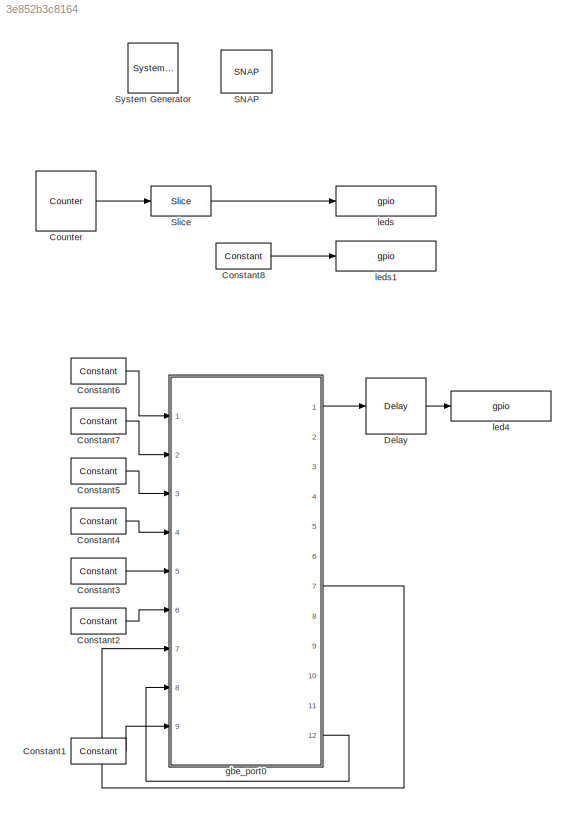
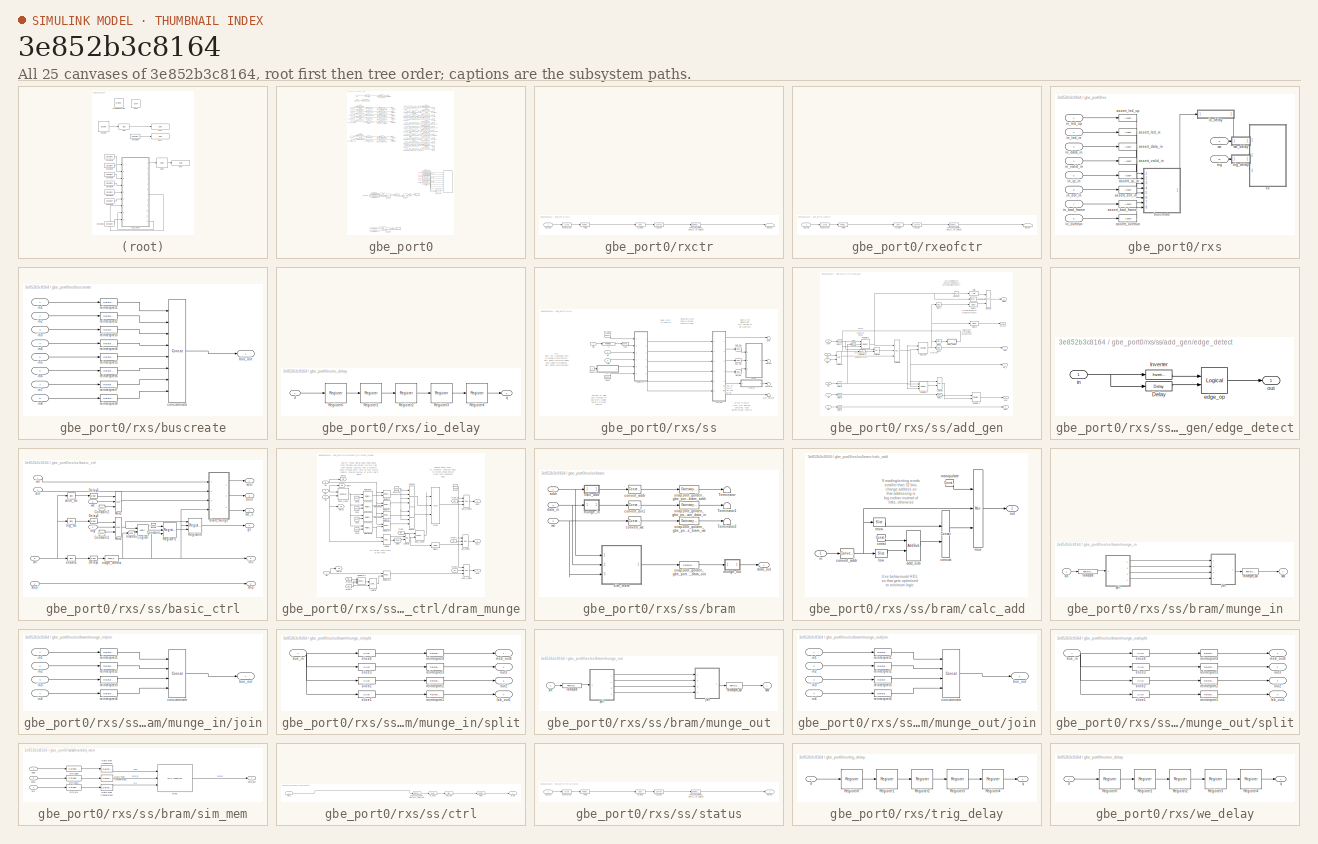
[diagram: thumbnail index - all 25 canvases of the model, root first then tree order]
MODEL slx_3e852b3c8164
KIND model
CONFIG AbsTol = auto
CONFIG EnableMultiTasking = off
CONFIG FixedStep = auto
CONFIG MaxStep = auto
CONFIG MinStep = auto
CONFIG RelTol = 1e-3
CONFIG SampleTimeConstraint = Unconstrained
CONFIG Solver = VariableStepDiscrete
CONFIG SolverName = VariableStepDiscrete
CONFIG StartTime = 0.0
CONFIG StopTime = 10.0
BLOCK [Reference]  System Generator  REF=xbsIndex_r4/ System Generator
  AttributesFormatString = System\nGenerator
  Ports = []
  SourceBlock = xbsIndex_r4/ System Generator
  SourceType = Xilinx System Generator Block
  Tag = genX
  UserDataPersistent = on
BLOCK [Reference] Constant1  REF=xbsIndex_r4/Constant
  Ports = [0, 1]
  SourceBlock = xbsIndex_r4/Constant
  SourceType = Xilinx Constant Block Block
BLOCK [Reference] Constant2  REF=xbsIndex_r4/Constant
  Ports = [0, 1]
  SourceBlock = xbsIndex_r4/Constant
  SourceType = Xilinx Constant Block Block
BLOCK [Reference] Constant3  REF=xbsIndex_r4/Constant
  Ports = [0, 1]
  SourceBlock = xbsIndex_r4/Constant
  SourceType = Xilinx Constant Block Block
BLOCK [Reference] Constant4  REF=xbsIndex_r4/Constant
  Ports = [0, 1]
  SourceBlock = xbsIndex_r4/Constant
  SourceType = Xilinx Constant Block Block
BLOCK [Reference] Constant5  REF=xbsIndex_r4/Constant
  Ports = [0, 1]
  SourceBlock = xbsIndex_r4/Constant
  SourceType = Xilinx Constant Block Block
BLOCK [Reference] Constant6  REF=xbsIndex_r4/Constant
  Ports = [0, 1]
  SourceBlock = xbsIndex_r4/Constant
  SourceType = Xilinx Constant Block Block
BLOCK [Reference] Constant7  REF=xbsIndex_r4/Constant
  Ports = [0, 1]
  SourceBlock = xbsIndex_r4/Constant
  SourceType = Xilinx Constant Block Block
BLOCK [Reference] Constant8  REF=xbsIndex_r4/Constant
  Ports = [0, 1]
  SourceBlock = xbsIndex_r4/Constant
  SourceType = Xilinx Constant Block Block
BLOCK [Reference] Counter  REF=xbsIndex_r4/Counter
  Ports = [0, 1]
  SourceBlock = xbsIndex_r4/Counter
  SourceType = Xilinx Counter Block
BLOCK [Reference] Delay  REF=xbsIndex_r4/Delay
  Ports = [1, 1]
  SourceBlock = xbsIndex_r4/Delay
  SourceType = Xilinx Delay Block
BLOCK [Reference] SNAP  REF=xps_library/Platforms/SNAP  (lib defined in mdl_00b5cec29cd0, mdl_02ab6ecaa3d1, +5 more)
  Ports = []
  SourceBlock = xps_library/Platforms/SNAP
  SourceType = xsg core config
  Tag = xps:xsg
BLOCK [Reference] Slice  REF=xbsIndex_r4/Slice
  Ports = [1, 1]
  SourceBlock = xbsIndex_r4/Slice
  SourceType = Xilinx Bit Slice Extractor Block
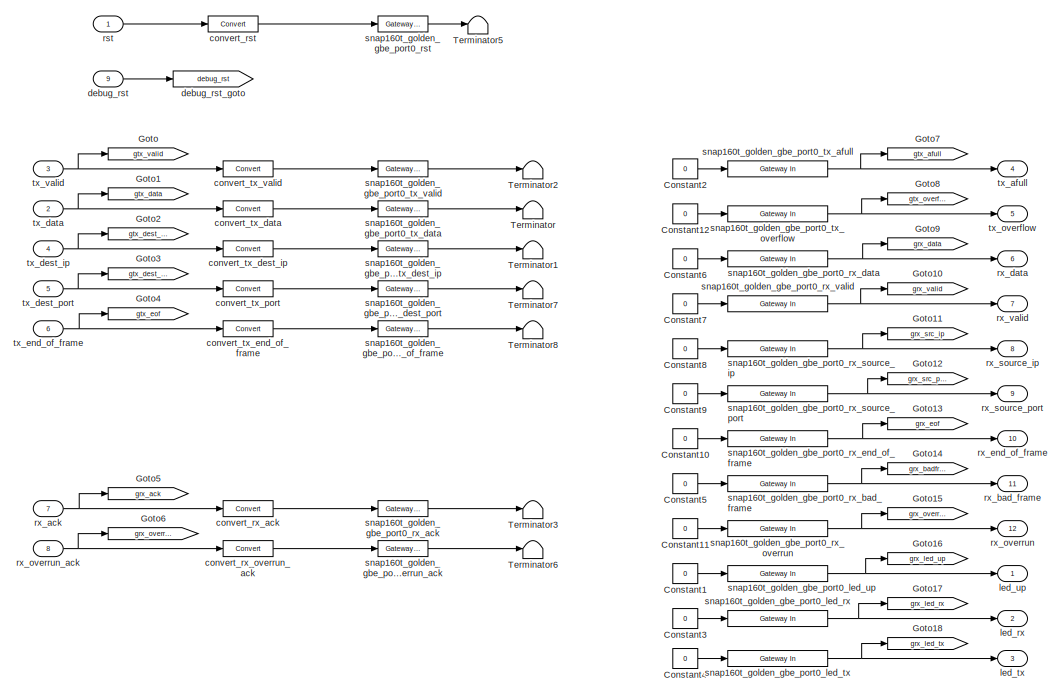
[diagram: gbe_port0 - part 1/2, full width, top band]
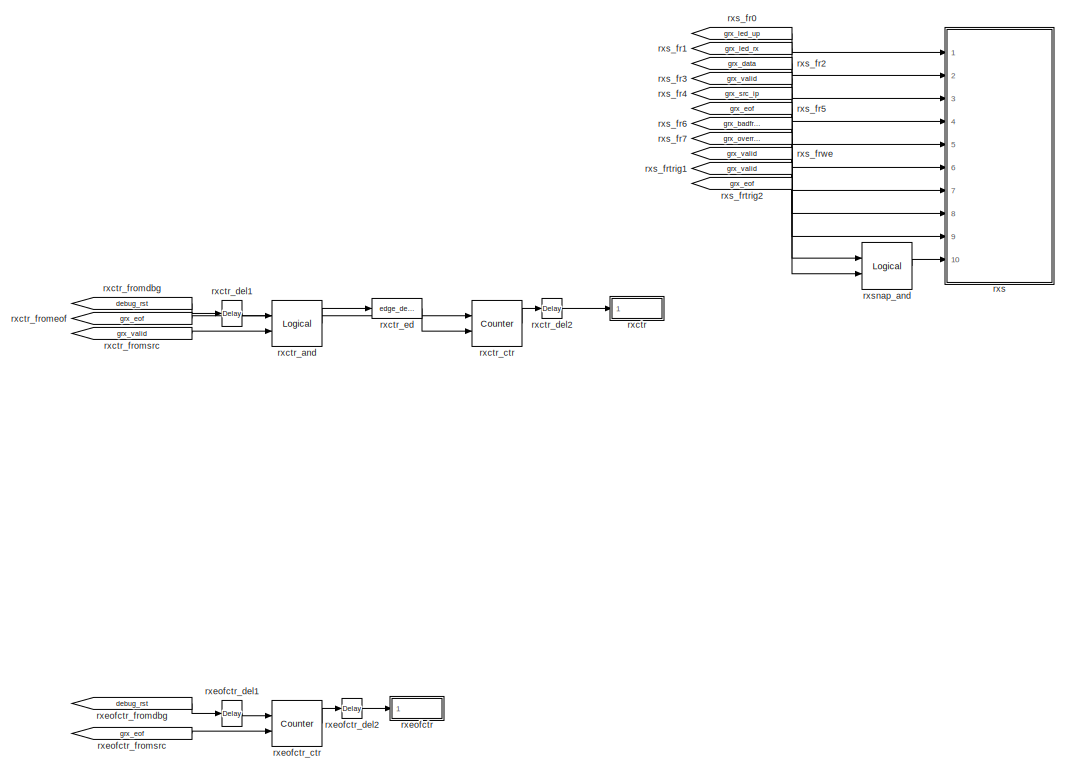
[diagram: gbe_port0 - part 2/2, full width, bottom band]
BLOCK [SubSystem] gbe_port0
  AncestorBlock = xps_library/ten_Gbe_v2
  Ports = [9, 12]
  RequestExecContextInheritance = off
  Tag = xps:tengbe_v2
  Variant = off
BLOCK [Constant] gbe_port0/Constant1
  Value = 0
BLOCK [Constant] gbe_port0/Constant10
  Value = 0
BLOCK [Constant] gbe_port0/Constant11
  Value = 0
BLOCK [Constant] gbe_port0/Constant12
  Value = 0
BLOCK [Constant] gbe_port0/Constant2
  Value = 0
BLOCK [Constant] gbe_port0/Constant3
  Value = 0
BLOCK [Constant] gbe_port0/Constant4
  Value = 0
BLOCK [Constant] gbe_port0/Constant5
  Value = 0
BLOCK [Constant] gbe_port0/Constant6
  Value = 0
BLOCK [Constant] gbe_port0/Constant7
  Value = 0
BLOCK [Constant] gbe_port0/Constant8
  Value = 0
BLOCK [Constant] gbe_port0/Constant9
  Value = 0
BLOCK [Goto] gbe_port0/Goto
  GotoTag = gtx_valid
BLOCK [Goto] gbe_port0/Goto1
  GotoTag = gtx_data
BLOCK [Goto] gbe_port0/Goto10
  GotoTag = grx_valid
BLOCK [Goto] gbe_port0/Goto11
  GotoTag = grx_src_ip
BLOCK [Goto] gbe_port0/Goto12
  GotoTag = grx_src_port
BLOCK [Goto] gbe_port0/Goto13
  GotoTag = grx_eof
BLOCK [Goto] gbe_port0/Goto14
  GotoTag = grx_badframe
BLOCK [Goto] gbe_port0/Goto15
  GotoTag = grx_overrun
BLOCK [Goto] gbe_port0/Goto16
  GotoTag = grx_led_up
BLOCK [Goto] gbe_port0/Goto17
  GotoTag = grx_led_rx
BLOCK [Goto] gbe_port0/Goto18
  GotoTag = grx_led_tx
BLOCK [Goto] gbe_port0/Goto2
  GotoTag = gtx_dest_ip
BLOCK [Goto] gbe_port0/Goto3
  GotoTag = gtx_dest_port
BLOCK [Goto] gbe_port0/Goto4
  GotoTag = gtx_eof
BLOCK [Goto] gbe_port0/Goto5
  GotoTag = grx_ack
BLOCK [Goto] gbe_port0/Goto6
  GotoTag = grx_overrun_ack
BLOCK [Goto] gbe_port0/Goto7
  GotoTag = gtx_afull
BLOCK [Goto] gbe_port0/Goto8
  GotoTag = gtx_overflow
BLOCK [Goto] gbe_port0/Goto9
  GotoTag = grx_data
BLOCK [Terminator] gbe_port0/Terminator
BLOCK [Terminator] gbe_port0/Terminator1
BLOCK [Terminator] gbe_port0/Terminator2
BLOCK [Terminator] gbe_port0/Terminator3
BLOCK [Terminator] gbe_port0/Terminator5
BLOCK [Terminator] gbe_port0/Terminator6
BLOCK [Terminator] gbe_port0/Terminator7
BLOCK [Terminator] gbe_port0/Terminator8
BLOCK [Reference] gbe_port0/convert_rst  REF=xbsIndex_r4/Convert
  Ports = [1, 1]
  SourceBlock = xbsIndex_r4/Convert
  SourceType = Xilinx Type Converter Block
BLOCK [Reference] gbe_port0/convert_rx_ack  REF=xbsIndex_r4/Convert
  Ports = [1, 1]
  SourceBlock = xbsIndex_r4/Convert
  SourceType = Xilinx Type Converter Block
BLOCK [Reference] gbe_port0/convert_rx_overrun_ack  REF=xbsIndex_r4/Convert
  Ports = [1, 1]
  SourceBlock = xbsIndex_r4/Convert
  SourceType = Xilinx Type Converter Block
BLOCK [Reference] gbe_port0/convert_tx_data  REF=xbsIndex_r4/Convert
  Ports = [1, 1]
  SourceBlock = xbsIndex_r4/Convert
  SourceType = Xilinx Type Converter Block
BLOCK [Reference] gbe_port0/convert_tx_dest_ip  REF=xbsIndex_r4/Convert
  Ports = [1, 1]
  SourceBlock = xbsIndex_r4/Convert
  SourceType = Xilinx Type Converter Block
BLOCK [Reference] gbe_port0/convert_tx_end_of_frame  REF=xbsIndex_r4/Convert
  Ports = [1, 1]
  SourceBlock = xbsIndex_r4/Convert
  SourceType = Xilinx Type Converter Block
BLOCK [Reference] gbe_port0/convert_tx_port  REF=xbsIndex_r4/Convert
  Ports = [1, 1]
  SourceBlock = xbsIndex_r4/Convert
  SourceType = Xilinx Type Converter Block
BLOCK [Reference] gbe_port0/convert_tx_valid  REF=xbsIndex_r4/Convert
  Ports = [1, 1]
  SourceBlock = xbsIndex_r4/Convert
  SourceType = Xilinx Type Converter Block
BLOCK [Inport] gbe_port0/debug_rst
  IconDisplay = Port number
  Port = 9
BLOCK [Goto] gbe_port0/debug_rst_goto
  GotoTag = debug_rst
BLOCK [Outport] gbe_port0/led_rx
  IconDisplay = Port number
  Port = 2
BLOCK [Outport] gbe_port0/led_tx
  IconDisplay = Port number
  Port = 3
BLOCK [Outport] gbe_port0/led_up
  IconDisplay = Port number
BLOCK [Inport] gbe_port0/rst
  IconDisplay = Port number
BLOCK [Inport] gbe_port0/rx_ack
  IconDisplay = Port number
  Port = 7
BLOCK [Outport] gbe_port0/rx_bad_frame
  IconDisplay = Port number
  Port = 11
BLOCK [Outport] gbe_port0/rx_data
  IconDisplay = Port number
  Port = 6
BLOCK [Outport] gbe_port0/rx_end_of_frame
  IconDisplay = Port number
  Port = 10
BLOCK [Outport] gbe_port0/rx_overrun
  IconDisplay = Port number
  Port = 12
BLOCK [Inport] gbe_port0/rx_overrun_ack
  IconDisplay = Port number
  Port = 8
BLOCK [Outport] gbe_port0/rx_source_ip
  IconDisplay = Port number
  Port = 8
BLOCK [Outport] gbe_port0/rx_source_port
  IconDisplay = Port number
  Port = 9
BLOCK [Outport] gbe_port0/rx_valid
  IconDisplay = Port number
  Port = 7
BLOCK [SubSystem] gbe_port0/rxctr
  AncestorBlock = xps_library/software_register
  AttributesFormatString = 1output:uf16.0 = 16 bits
  Ports = [1]
  RequestExecContextInheritance = off
  Tag = xps:sw_reg
  Variant = off
BLOCK [Reference] gbe_port0/rxctr/assert_reg  REF=xbsIndex_r4/Assert
  Ports = [1, 1]
  SourceBlock = xbsIndex_r4/Assert
  SourceType = Xilinx Assert Block
BLOCK [Reference] gbe_port0/rxctr/cast_gw  REF=xbsIndex_r4/Convert
  Ports = [1, 1]
  SourceBlock = xbsIndex_r4/Convert
  SourceType = Xilinx Type Converter Block
BLOCK [Reference] gbe_port0/rxctr/io_delay  REF=xbsIndex_r4/Delay
  Ports = [1, 1]
  SourceBlock = xbsIndex_r4/Delay
  SourceType = Xilinx Delay Block
BLOCK [Inport] gbe_port0/rxctr/out_reg
  IconDisplay = Port number
BLOCK [Reference] gbe_port0/rxctr/reint1  REF=xbsIndex_r4/Reinterpret
  Ports = [1, 1]
  SourceBlock = xbsIndex_r4/Reinterpret
  SourceType = Xilinx Type Reinterpreter Block
BLOCK [Terminator] gbe_port0/rxctr/sim_out
BLOCK [Reference] gbe_port0/rxctr/snap160t_golden_gbe_port0_rxctr_user_data_in  REF=xbsIndex_r4/Gateway Out
  Ports = [1, 1]
  SourceBlock = xbsIndex_r4/Gateway Out
  SourceType = Xilinx Gateway Out Block
BLOCK [Reference] gbe_port0/rxctr_and  REF=xbsIndex_r4/Logical
  Ports = [2, 1]
  SourceBlock = xbsIndex_r4/Logical
  SourceType = Xilinx Logical Block Block
BLOCK [Reference] gbe_port0/rxctr_ctr  REF=xbsIndex_r4/Counter
  Ports = [2, 1]
  SourceBlock = xbsIndex_r4/Counter
  SourceType = Xilinx Counter Block
BLOCK [Reference] gbe_port0/rxctr_del1  REF=xbsIndex_r4/Delay
  Ports = [1, 1]
  SourceBlock = xbsIndex_r4/Delay
  SourceType = Xilinx Delay Block
BLOCK [Reference] gbe_port0/rxctr_del2  REF=xbsIndex_r4/Delay
  Ports = [1, 1]
  SourceBlock = xbsIndex_r4/Delay
  SourceType = Xilinx Delay Block
BLOCK [Reference] gbe_port0/rxctr_ed  REF=casper_library_misc/edge_detect  (lib defined in mdl_357510c33b49, mdl_57b5f564ae26, +4 more)
  AttributesFormatString = rising edges\nactive high
  Ports = [1, 1]
  SourceBlock = casper_library_misc/edge_detect
  SourceType = edge_detect
  UserDataPersistent = on
BLOCK [From] gbe_port0/rxctr_fromdbg
  GotoTag = debug_rst
BLOCK [From] gbe_port0/rxctr_fromeof
  GotoTag = grx_eof
BLOCK [From] gbe_port0/rxctr_fromsrc
  GotoTag = grx_valid
BLOCK [SubSystem] gbe_port0/rxeofctr
  AncestorBlock = xps_library/software_register
  AttributesFormatString = 1output:uf16.0 = 16 bits
  Ports = [1]
  RequestExecContextInheritance = off
  Tag = xps:sw_reg
  Variant = off
BLOCK [Reference] gbe_port0/rxeofctr/assert_reg  REF=xbsIndex_r4/Assert
  Ports = [1, 1]
  SourceBlock = xbsIndex_r4/Assert
  SourceType = Xilinx Assert Block
BLOCK [Reference] gbe_port0/rxeofctr/cast_gw  REF=xbsIndex_r4/Convert
  Ports = [1, 1]
  SourceBlock = xbsIndex_r4/Convert
  SourceType = Xilinx Type Converter Block
BLOCK [Reference] gbe_port0/rxeofctr/io_delay  REF=xbsIndex_r4/Delay
  Ports = [1, 1]
  SourceBlock = xbsIndex_r4/Delay
  SourceType = Xilinx Delay Block
BLOCK [Inport] gbe_port0/rxeofctr/out_reg
  IconDisplay = Port number
BLOCK [Reference] gbe_port0/rxeofctr/reint1  REF=xbsIndex_r4/Reinterpret
  Ports = [1, 1]
  SourceBlock = xbsIndex_r4/Reinterpret
  SourceType = Xilinx Type Reinterpreter Block
BLOCK [Terminator] gbe_port0/rxeofctr/sim_out
BLOCK [Reference] gbe_port0/rxeofctr/snap160t_golden_gbe_port0_rxeofctr_user_data_in  REF=xbsIndex_r4/Gateway Out
  Ports = [1, 1]
  SourceBlock = xbsIndex_r4/Gateway Out
  SourceType = Xilinx Gateway Out Block
BLOCK [Reference] gbe_port0/rxeofctr_ctr  REF=xbsIndex_r4/Counter
  Ports = [2, 1]
  SourceBlock = xbsIndex_r4/Counter
  SourceType = Xilinx Counter Block
BLOCK [Reference] gbe_port0/rxeofctr_del1  REF=xbsIndex_r4/Delay
  Ports = [1, 1]
  SourceBlock = xbsIndex_r4/Delay
  SourceType = Xilinx Delay Block
BLOCK [Reference] gbe_port0/rxeofctr_del2  REF=xbsIndex_r4/Delay
  Ports = [1, 1]
  SourceBlock = xbsIndex_r4/Delay
  SourceType = Xilinx Delay Block
BLOCK [From] gbe_port0/rxeofctr_fromdbg
  GotoTag = debug_rst
BLOCK [From] gbe_port0/rxeofctr_fromsrc
  GotoTag = grx_eof
BLOCK [SubSystem] gbe_port0/rxs
  AncestorBlock = casper_library_scopes/bitfield snapshot
  AttributesFormatString = snap(8):b,b,uf64.0,b,uf32.0,b,b,b = 102 bits
  Ports = [10]
  RequestExecContextInheritance = off
  Tag = casper:bitsnap
  UserDataPersistent = on
  Variant = off
BLOCK [Reference] gbe_port0/rxs/assert_bad_frame  REF=xbsIndex_r4/Assert
  Ports = [1, 1]
  SourceBlock = xbsIndex_r4/Assert
  SourceType = Xilinx Assert Block
BLOCK [Reference] gbe_port0/rxs/assert_data_in  REF=xbsIndex_r4/Assert
  Ports = [1, 1]
  SourceBlock = xbsIndex_r4/Assert
  SourceType = Xilinx Assert Block
BLOCK [Reference] gbe_port0/rxs/assert_eof_in  REF=xbsIndex_r4/Assert
  Ports = [1, 1]
  SourceBlock = xbsIndex_r4/Assert
  SourceType = Xilinx Assert Block
BLOCK [Reference] gbe_port0/rxs/assert_ip_in  REF=xbsIndex_r4/Assert
  Ports = [1, 1]
  SourceBlock = xbsIndex_r4/Assert
  SourceType = Xilinx Assert Block
BLOCK [Reference] gbe_port0/rxs/assert_led_rx  REF=xbsIndex_r4/Assert
  Ports = [1, 1]
  SourceBlock = xbsIndex_r4/Assert
  SourceType = Xilinx Assert Block
BLOCK [Reference] gbe_port0/rxs/assert_led_up  REF=xbsIndex_r4/Assert
  Ports = [1, 1]
  SourceBlock = xbsIndex_r4/Assert
  SourceType = Xilinx Assert Block
BLOCK [Reference] gbe_port0/rxs/assert_overrun  REF=xbsIndex_r4/Assert
  Ports = [1, 1]
  SourceBlock = xbsIndex_r4/Assert
  SourceType = Xilinx Assert Block
BLOCK [Reference] gbe_port0/rxs/assert_valid_in  REF=xbsIndex_r4/Assert
  Ports = [1, 1]
  SourceBlock = xbsIndex_r4/Assert
  SourceType = Xilinx Assert Block
BLOCK [SubSystem] gbe_port0/rxs/buscreate
  AncestorBlock = casper_library_flow_control/bus_create
  Ports = [8, 1]
  RequestExecContextInheritance = off
  UserDataPersistent = on
  Variant = off
BLOCK [Outport] gbe_port0/rxs/buscreate/bus_out
  IconDisplay = Port number
BLOCK [Reference] gbe_port0/rxs/buscreate/concatenate  REF=xbsIndex_r4/Concat
  Ports = [8, 1]
  SourceBlock = xbsIndex_r4/Concat
  SourceType = Xilinx Bus Concatenator Block
BLOCK [Inport] gbe_port0/rxs/buscreate/in1
  IconDisplay = Port number
BLOCK [Inport] gbe_port0/rxs/buscreate/in2
  IconDisplay = Port number
  Port = 2
BLOCK [Inport] gbe_port0/rxs/buscreate/in3
  IconDisplay = Port number
  Port = 3
BLOCK [Inport] gbe_port0/rxs/buscreate/in4
  IconDisplay = Port number
  Port = 4
BLOCK [Inport] gbe_port0/rxs/buscreate/in5
  IconDisplay = Port number
  Port = 5
BLOCK [Inport] gbe_port0/rxs/buscreate/in6
  IconDisplay = Port number
  Port = 6
BLOCK [Inport] gbe_port0/rxs/buscreate/in7
  IconDisplay = Port number
  Port = 7
BLOCK [Inport] gbe_port0/rxs/buscreate/in8
  IconDisplay = Port number
  Port = 8
BLOCK [Reference] gbe_port0/rxs/buscreate/reinterpret1  REF=xbsIndex_r4/Reinterpret
  Ports = [1, 1]
  SourceBlock = xbsIndex_r4/Reinterpret
  SourceType = Xilinx Type Reinterpreter Block
BLOCK [Reference] gbe_port0/rxs/buscreate/reinterpret2  REF=xbsIndex_r4/Reinterpret
  Ports = [1, 1]
  SourceBlock = xbsIndex_r4/Reinterpret
  SourceType = Xilinx Type Reinterpreter Block
BLOCK [Reference] gbe_port0/rxs/buscreate/reinterpret3  REF=xbsIndex_r4/Reinterpret
  Ports = [1, 1]
  SourceBlock = xbsIndex_r4/Reinterpret
  SourceType = Xilinx Type Reinterpreter Block
BLOCK [Reference] gbe_port0/rxs/buscreate/reinterpret4  REF=xbsIndex_r4/Reinterpret
  Ports = [1, 1]
  SourceBlock = xbsIndex_r4/Reinterpret
  SourceType = Xilinx Type Reinterpreter Block
BLOCK [Reference] gbe_port0/rxs/buscreate/reinterpret5  REF=xbsIndex_r4/Reinterpret
  Ports = [1, 1]
  SourceBlock = xbsIndex_r4/Reinterpret
  SourceType = Xilinx Type Reinterpreter Block
BLOCK [Reference] gbe_port0/rxs/buscreate/reinterpret6  REF=xbsIndex_r4/Reinterpret
  Ports = [1, 1]
  SourceBlock = xbsIndex_r4/Reinterpret
  SourceType = Xilinx Type Reinterpreter Block
BLOCK [Reference] gbe_port0/rxs/buscreate/reinterpret7  REF=xbsIndex_r4/Reinterpret
  Ports = [1, 1]
  SourceBlock = xbsIndex_r4/Reinterpret
  SourceType = Xilinx Type Reinterpreter Block
BLOCK [Reference] gbe_port0/rxs/buscreate/reinterpret8  REF=xbsIndex_r4/Reinterpret
  Ports = [1, 1]
  SourceBlock = xbsIndex_r4/Reinterpret
  SourceType = Xilinx Type Reinterpreter Block
BLOCK [Inport] gbe_port0/rxs/in_bad_frame
  IconDisplay = Port number
  Port = 7
BLOCK [Inport] gbe_port0/rxs/in_data_in
  IconDisplay = Port number
  Port = 3
BLOCK [Inport] gbe_port0/rxs/in_eof_in
  IconDisplay = Port number
  Port = 6
BLOCK [Inport] gbe_port0/rxs/in_ip_in
  IconDisplay = Port number
  Port = 5
BLOCK [Inport] gbe_port0/rxs/in_led_rx
  IconDisplay = Port number
  Port = 2
BLOCK [Inport] gbe_port0/rxs/in_led_up
  IconDisplay = Port number
BLOCK [Inport] gbe_port0/rxs/in_overrun
  IconDisplay = Port number
  Port = 8
BLOCK [Inport] gbe_port0/rxs/in_valid_in
  IconDisplay = Port number
  Port = 4
BLOCK [SubSystem] gbe_port0/rxs/io_delay
  AncestorBlock = casper_library_delays/pipeline
  AttributesFormatString = Latency = %<latency>
  Ports = [1, 1]
  RequestExecContextInheritance = off
  UserDataPersistent = on
  Variant = off
BLOCK [Reference] gbe_port0/rxs/io_delay/Register0  REF=xbsIndex_r4/Register
  Ports = [1, 1]
  SourceBlock = xbsIndex_r4/Register
  SourceType = Xilinx Register Block
BLOCK [Reference] gbe_port0/rxs/io_delay/Register1  REF=xbsIndex_r4/Register
  Ports = [1, 1]
  SourceBlock = xbsIndex_r4/Register
  SourceType = Xilinx Register Block
BLOCK [Reference] gbe_port0/rxs/io_delay/Register2  REF=xbsIndex_r4/Register
  Ports = [1, 1]
  SourceBlock = xbsIndex_r4/Register
  SourceType = Xilinx Register Block
BLOCK [Reference] gbe_port0/rxs/io_delay/Register3  REF=xbsIndex_r4/Register
  Ports = [1, 1]
  SourceBlock = xbsIndex_r4/Register
  SourceType = Xilinx Register Block
BLOCK [Reference] gbe_port0/rxs/io_delay/Register4  REF=xbsIndex_r4/Register
  Ports = [1, 1]
  SourceBlock = xbsIndex_r4/Register
  SourceType = Xilinx Register Block
BLOCK [Inport] gbe_port0/rxs/io_delay/d
  IconDisplay = Port number
BLOCK [Outport] gbe_port0/rxs/io_delay/q
  IconDisplay = Port number
BLOCK [SubSystem] gbe_port0/rxs/ss
  AncestorBlock = casper_library_scopes/snapshot
  Ports = [3]
  RequestExecContextInheritance = off
  Tag = casper:snapshot
  UserDataPersistent = on
  Variant = off
BLOCK [Reference] gbe_port0/rxs/ss/add_del  REF=xbsIndex_r4/Delay
  Ports = [1, 1]
  SourceBlock = xbsIndex_r4/Delay
  SourceType = Xilinx Delay Block
BLOCK [SubSystem] gbe_port0/rxs/ss/add_gen
  AncestorBlock = casper_library_scopes/snapshot/add_gen
  Ports = [6, 6]
  RequestExecContextInheritance = off
  Variant = off
BLOCK [Reference] gbe_port0/rxs/ss/add_gen/Concat  REF=xbsIndex_r4/Concat
  Ports = [3, 1]
  SourceBlock = xbsIndex_r4/Concat
  SourceType = Xilinx Bus Concatenator Block
BLOCK [Reference] gbe_port0/rxs/ss/add_gen/Convert  REF=xbsIndex_r4/Convert
  Ports = [1, 1]
  SourceBlock = xbsIndex_r4/Convert
  SourceType = Xilinx Type Converter Block
BLOCK [Reference] gbe_port0/rxs/ss/add_gen/Delay  REF=xbsIndex_r4/Delay
  Ports = [1, 1]
  SourceBlock = xbsIndex_r4/Delay
  SourceType = Xilinx Delay Block
BLOCK [Reference] gbe_port0/rxs/ss/add_gen/Delay1  REF=xbsIndex_r4/Delay
  Ports = [1, 1]
  SourceBlock = xbsIndex_r4/Delay
  SourceType = Xilinx Delay Block
BLOCK [Reference] gbe_port0/rxs/ss/add_gen/Delay2  REF=xbsIndex_r4/Delay
  Ports = [1, 1]
  SourceBlock = xbsIndex_r4/Delay
  SourceType = Xilinx Delay Block
BLOCK [Reference] gbe_port0/rxs/ss/add_gen/Delay3  REF=xbsIndex_r4/Delay
  Ports = [1, 1]
  SourceBlock = xbsIndex_r4/Delay
  SourceType = Xilinx Delay Block
BLOCK [Reference] gbe_port0/rxs/ss/add_gen/Delay4  REF=xbsIndex_r4/Delay
  Ports = [1, 1]
  SourceBlock = xbsIndex_r4/Delay
  SourceType = Xilinx Delay Block
BLOCK [Reference] gbe_port0/rxs/ss/add_gen/Delay5  REF=xbsIndex_r4/Delay
  Ports = [1, 1]
  SourceBlock = xbsIndex_r4/Delay
  SourceType = Xilinx Delay Block
BLOCK [Reference] gbe_port0/rxs/ss/add_gen/Delay6  REF=xbsIndex_r4/Delay
  Ports = [1, 1]
  SourceBlock = xbsIndex_r4/Delay
  SourceType = Xilinx Delay Block
BLOCK [Reference] gbe_port0/rxs/ss/add_gen/Delay7  REF=xbsIndex_r4/Delay
  Ports = [1, 1]
  SourceBlock = xbsIndex_r4/Delay
  SourceType = Xilinx Delay Block
BLOCK [Reference] gbe_port0/rxs/ss/add_gen/Inverter  REF=xbsIndex_r4/Inverter
  Ports = [1, 1]
  SourceBlock = xbsIndex_r4/Inverter
  SourceType = Xilinx Inverter Block
BLOCK [Reference] gbe_port0/rxs/ss/add_gen/Inverter1  REF=xbsIndex_r4/Inverter
  Ports = [1, 1]
  SourceBlock = xbsIndex_r4/Inverter
  SourceType = Xilinx Inverter Block
BLOCK [Reference] gbe_port0/rxs/ss/add_gen/Logical1  REF=xbsIndex_r4/Logical
  Ports = [2, 1]
  SourceBlock = xbsIndex_r4/Logical
  SourceType = Xilinx Logical Block Block
BLOCK [Reference] gbe_port0/rxs/ss/add_gen/Logical2  REF=xbsIndex_r4/Logical
  Ports = [2, 1]
  SourceBlock = xbsIndex_r4/Logical
  SourceType = Xilinx Logical Block Block
BLOCK [Reference] gbe_port0/rxs/ss/add_gen/Logical4  REF=xbsIndex_r4/Logical
  Ports = [2, 1]
  SourceBlock = xbsIndex_r4/Logical
  SourceType = Xilinx Logical Block Block
BLOCK [Reference] gbe_port0/rxs/ss/add_gen/Logical6  REF=xbsIndex_r4/Logical
  Ports = [3, 1]
  SourceBlock = xbsIndex_r4/Logical
  SourceType = Xilinx Logical Block Block
BLOCK [Reference] gbe_port0/rxs/ss/add_gen/Register3  REF=xbsIndex_r4/Register
  Ports = [3, 1]
  SourceBlock = xbsIndex_r4/Register
  SourceType = Xilinx Register Block
BLOCK [Reference] gbe_port0/rxs/ss/add_gen/Register4  REF=xbsIndex_r4/Register
  Ports = [2, 1]
  SourceBlock = xbsIndex_r4/Register
  SourceType = Xilinx Register Block
BLOCK [Reference] gbe_port0/rxs/ss/add_gen/Register5  REF=xbsIndex_r4/Register
  Ports = [3, 1]
  SourceBlock = xbsIndex_r4/Register
  SourceType = Xilinx Register Block
BLOCK [Reference] gbe_port0/rxs/ss/add_gen/Shift  REF=xbsIndex_r4/Shift
  Ports = [1, 1]
  SourceBlock = xbsIndex_r4/Shift
  SourceType = Xilinx Binary Shift Operator Block
BLOCK [Outport] gbe_port0/rxs/ss/add_gen/add
  IconDisplay = Port number
  Port = 2
BLOCK [Reference] gbe_port0/rxs/ss/add_gen/add_gen  REF=xbsIndex_r4/Counter
  Ports = [2, 1]
  SourceBlock = xbsIndex_r4/Counter
  SourceType = Xilinx Counter Block
BLOCK [Inport] gbe_port0/rxs/ss/add_gen/cont
  IconDisplay = Port number
  Port = 5
BLOCK [Inport] gbe_port0/rxs/ss/add_gen/din
  IconDisplay = Port number
  Port = 2
BLOCK [Outport] gbe_port0/rxs/ss/add_gen/dout
  IconDisplay = Port number
  Port = 3
BLOCK [SubSystem] gbe_port0/rxs/ss/add_gen/edge_detect
  AncestorBlock = casper_library_misc/edge_detect
  AttributesFormatString = both edges\nactive high
  Ports = [1, 1]
  RequestExecContextInheritance = off
  UserDataPersistent = on
  Variant = off
BLOCK [Reference] gbe_port0/rxs/ss/add_gen/edge_detect/Delay  REF=xbsIndex_r4/Delay
  Ports = [1, 1]
  SourceBlock = xbsIndex_r4/Delay
  SourceType = Xilinx Delay Block
BLOCK [Reference] gbe_port0/rxs/ss/add_gen/edge_detect/Inverter  REF=xbsIndex_r4/Inverter
  Ports = [1, 1]
  SourceBlock = xbsIndex_r4/Inverter
  SourceType = Xilinx Inverter Block
BLOCK [Reference] gbe_port0/rxs/ss/add_gen/edge_detect/edge_op  REF=xbsIndex_r4/Logical
  Ports = [2, 1]
  SourceBlock = xbsIndex_r4/Logical
  SourceType = Xilinx Logical Block Block
BLOCK [Inport] gbe_port0/rxs/ss/add_gen/edge_detect/in
  IconDisplay = Port number
BLOCK [Outport] gbe_port0/rxs/ss/add_gen/edge_detect/out
  IconDisplay = Port number
BLOCK [Outport] gbe_port0/rxs/ss/add_gen/en_cnt
  IconDisplay = Port number
  Port = 6
BLOCK [Inport] gbe_port0/rxs/ss/add_gen/go
  IconDisplay = Port number
  Port = 4
BLOCK [Inport] gbe_port0/rxs/ss/add_gen/init
  IconDisplay = Port number
  Port = 6
BLOCK [Reference] gbe_port0/rxs/ss/add_gen/slice1  REF=xbsIndex_r4/Slice
  Ports = [1, 1]
  SourceBlock = xbsIndex_r4/Slice
  SourceType = Xilinx Bit Slice Extractor Block
BLOCK [Reference] gbe_port0/rxs/ss/add_gen/slice2  REF=xbsIndex_r4/Slice
  Ports = [1, 1]
  SourceBlock = xbsIndex_r4/Slice
  SourceType = Xilinx Bit Slice Extractor Block
BLOCK [Reference] gbe_port0/rxs/ss/add_gen/slice3  REF=xbsIndex_r4/Slice
  Ports = [1, 1]
  SourceBlock = xbsIndex_r4/Slice
  SourceType = Xilinx Bit Slice Extractor Block
BLOCK [Outport] gbe_port0/rxs/ss/add_gen/status
  IconDisplay = Port number
  Port = 5
BLOCK [Inport] gbe_port0/rxs/ss/add_gen/vin
  IconDisplay = Port number
BLOCK [Outport] gbe_port0/rxs/ss/add_gen/vout
  IconDisplay = Port number
BLOCK [Inport] gbe_port0/rxs/ss/add_gen/we
  IconDisplay = Port number
  Port = 3
BLOCK [Outport] gbe_port0/rxs/ss/add_gen/we_o
  IconDisplay = Port number
  Port = 4
BLOCK [SubSystem] gbe_port0/rxs/ss/basic_ctrl
  AncestorBlock = casper_library_scopes/snapshot/basic_ctrl
  Ports = [6, 6]
  RequestExecContextInheritance = off
  Variant = off
BLOCK [Reference] gbe_port0/rxs/ss/basic_ctrl/Constant  REF=xbsIndex_r4/Constant
  Ports = [0, 1]
  SourceBlock = xbsIndex_r4/Constant
  SourceType = Xilinx Constant Block Block
BLOCK [Reference] gbe_port0/rxs/ss/basic_ctrl/Constant1  REF=xbsIndex_r4/Constant
  Ports = [0, 1]
  SourceBlock = xbsIndex_r4/Constant
  SourceType = Xilinx Constant Block Block
BLOCK [Reference] gbe_port0/rxs/ss/basic_ctrl/Constant2  REF=xbsIndex_r4/Constant
  Ports = [0, 1]
  SourceBlock = xbsIndex_r4/Constant
  SourceType = Xilinx Constant Block Block
BLOCK [Reference] gbe_port0/rxs/ss/basic_ctrl/Delay1  REF=xbsIndex_r4/Delay
  Ports = [1, 1]
  SourceBlock = xbsIndex_r4/Delay
  SourceType = Xilinx Delay Block
BLOCK [Reference] gbe_port0/rxs/ss/basic_ctrl/Delay2  REF=xbsIndex_r4/Delay
  Ports = [1, 1]
  SourceBlock = xbsIndex_r4/Delay
  SourceType = Xilinx Delay Block
BLOCK [Reference] gbe_port0/rxs/ss/basic_ctrl/Delay3  REF=xbsIndex_r4/Delay
  Ports = [1, 1]
  SourceBlock = xbsIndex_r4/Delay
  SourceType = Xilinx Delay Block
BLOCK [Reference] gbe_port0/rxs/ss/basic_ctrl/Inverter  REF=xbsIndex_r4/Inverter
  Ports = [1, 1]
  SourceBlock = xbsIndex_r4/Inverter
  SourceType = Xilinx Inverter Block
BLOCK [Reference] gbe_port0/rxs/ss/basic_ctrl/Logical  REF=xbsIndex_r4/Logical
  Ports = [2, 1]
  SourceBlock = xbsIndex_r4/Logical
  SourceType = Xilinx Logical Block Block
BLOCK [Reference] gbe_port0/rxs/ss/basic_ctrl/Mux1  REF=xbsIndex_r4/Mux
  Ports = [3, 1]
  SourceBlock = xbsIndex_r4/Mux
  SourceType = Xilinx Bus Multiplexer Block
BLOCK [Reference] gbe_port0/rxs/ss/basic_ctrl/Mux2  REF=xbsIndex_r4/Mux
  Ports = [3, 1]
  SourceBlock = xbsIndex_r4/Mux
  SourceType = Xilinx Bus Multiplexer Block
BLOCK [Reference] gbe_port0/rxs/ss/basic_ctrl/Register1  REF=xbsIndex_r4/Register
  Ports = [3, 1]
  SourceBlock = xbsIndex_r4/Register
  SourceType = Xilinx Register Block
BLOCK [Reference] gbe_port0/rxs/ss/basic_ctrl/Register6  REF=xbsIndex_r4/Register
  Ports = [3, 1]
  SourceBlock = xbsIndex_r4/Register
  SourceType = Xilinx Register Block
BLOCK [Inport] gbe_port0/rxs/ss/basic_ctrl/ctrl
  IconDisplay = Port number
  Port = 5
BLOCK [Inport] gbe_port0/rxs/ss/basic_ctrl/din
  IconDisplay = Port number
  Port = 2
BLOCK [Outport] gbe_port0/rxs/ss/basic_ctrl/dout
  IconDisplay = Port number
  Port = 2
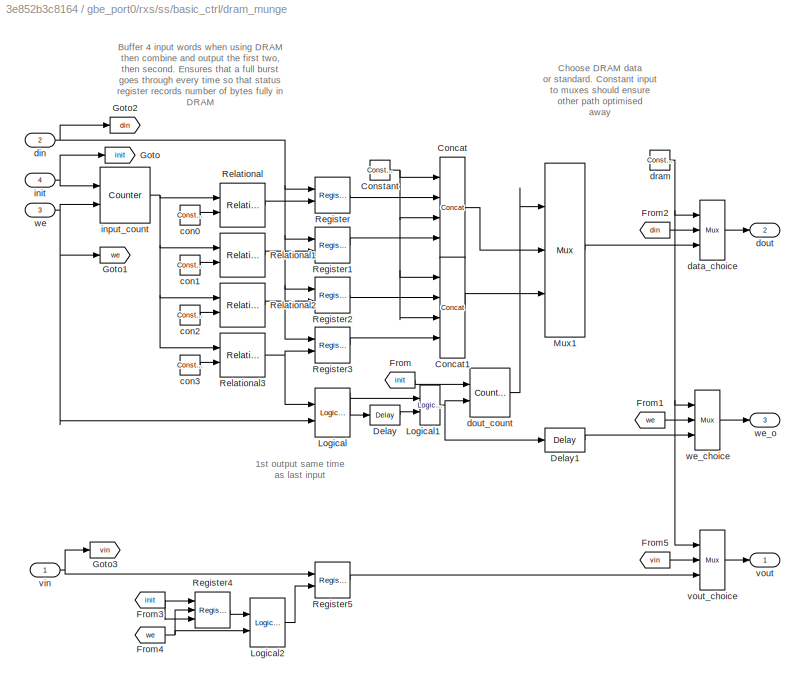
BLOCK [SubSystem] gbe_port0/rxs/ss/basic_ctrl/dram_munge
  Ports = [4, 3]
  RequestExecContextInheritance = off
  Variant = off
BLOCK [Reference] gbe_port0/rxs/ss/basic_ctrl/dram_munge/Concat  REF=xbsIndex_r4/Concat
  Ports = [4, 1]
  SourceBlock = xbsIndex_r4/Concat
  SourceType = Xilinx Bus Concatenator Block
BLOCK [Reference] gbe_port0/rxs/ss/basic_ctrl/dram_munge/Concat1  REF=xbsIndex_r4/Concat
  Ports = [4, 1]
  SourceBlock = xbsIndex_r4/Concat
  SourceType = Xilinx Bus Concatenator Block
BLOCK [Reference] gbe_port0/rxs/ss/basic_ctrl/dram_munge/Constant  REF=xbsIndex_r4/Constant
  Ports = [0, 1]
  SourceBlock = xbsIndex_r4/Constant
  SourceType = Xilinx Constant Block Block
BLOCK [Reference] gbe_port0/rxs/ss/basic_ctrl/dram_munge/Delay  REF=xbsIndex_r4/Delay
  Ports = [1, 1]
  SourceBlock = xbsIndex_r4/Delay
  SourceType = Xilinx Delay Block
BLOCK [Reference] gbe_port0/rxs/ss/basic_ctrl/dram_munge/Delay1  REF=xbsIndex_r4/Delay
  Ports = [1, 1]
  SourceBlock = xbsIndex_r4/Delay
  SourceType = Xilinx Delay Block
BLOCK [From] gbe_port0/rxs/ss/basic_ctrl/dram_munge/From
  CloseFcn = tagdialog Close
  GotoTag = init
BLOCK [From] gbe_port0/rxs/ss/basic_ctrl/dram_munge/From1
  CloseFcn = tagdialog Close
  GotoTag = we
BLOCK [From] gbe_port0/rxs/ss/basic_ctrl/dram_munge/From2
  CloseFcn = tagdialog Close
  GotoTag = din
BLOCK [From] gbe_port0/rxs/ss/basic_ctrl/dram_munge/From3
  CloseFcn = tagdialog Close
  GotoTag = init
BLOCK [From] gbe_port0/rxs/ss/basic_ctrl/dram_munge/From4
  CloseFcn = tagdialog Close
  GotoTag = we
BLOCK [From] gbe_port0/rxs/ss/basic_ctrl/dram_munge/From5
  CloseFcn = tagdialog Close
  GotoTag = vin
BLOCK [Goto] gbe_port0/rxs/ss/basic_ctrl/dram_munge/Goto
  GotoTag = init
BLOCK [Goto] gbe_port0/rxs/ss/basic_ctrl/dram_munge/Goto1
  GotoTag = we
BLOCK [Goto] gbe_port0/rxs/ss/basic_ctrl/dram_munge/Goto2
  GotoTag = din
BLOCK [Goto] gbe_port0/rxs/ss/basic_ctrl/dram_munge/Goto3
  GotoTag = vin
BLOCK [Reference] gbe_port0/rxs/ss/basic_ctrl/dram_munge/Logical  REF=xbsIndex_r4/Logical
  Ports = [2, 1]
  SourceBlock = xbsIndex_r4/Logical
  SourceType = Xilinx Logical Block Block
BLOCK [Reference] gbe_port0/rxs/ss/basic_ctrl/dram_munge/Logical1  REF=xbsIndex_r4/Logical
  Ports = [2, 1]
  SourceBlock = xbsIndex_r4/Logical
  SourceType = Xilinx Logical Block Block
BLOCK [Reference] gbe_port0/rxs/ss/basic_ctrl/dram_munge/Logical2  REF=xbsIndex_r4/Logical
  Ports = [2, 1]
  SourceBlock = xbsIndex_r4/Logical
  SourceType = Xilinx Logical Block Block
BLOCK [Reference] gbe_port0/rxs/ss/basic_ctrl/dram_munge/Mux1  REF=xbsIndex_r4/Mux
  Ports = [3, 1]
  SourceBlock = xbsIndex_r4/Mux
  SourceType = Xilinx Bus Multiplexer Block
BLOCK [Reference] gbe_port0/rxs/ss/basic_ctrl/dram_munge/Register  REF=xbsIndex_r4/Register
  Ports = [2, 1]
  SourceBlock = xbsIndex_r4/Register
  SourceType = Xilinx Register Block
BLOCK [Reference] gbe_port0/rxs/ss/basic_ctrl/dram_munge/Register1  REF=xbsIndex_r4/Register
  Ports = [2, 1]
  SourceBlock = xbsIndex_r4/Register
  SourceType = Xilinx Register Block
BLOCK [Reference] gbe_port0/rxs/ss/basic_ctrl/dram_munge/Register2  REF=xbsIndex_r4/Register
  Ports = [2, 1]
  SourceBlock = xbsIndex_r4/Register
  SourceType = Xilinx Register Block
BLOCK [Reference] gbe_port0/rxs/ss/basic_ctrl/dram_munge/Register3  REF=xbsIndex_r4/Register
  Ports = [2, 1]
  SourceBlock = xbsIndex_r4/Register
  SourceType = Xilinx Register Block
BLOCK [Reference] gbe_port0/rxs/ss/basic_ctrl/dram_munge/Register4  REF=xbsIndex_r4/Register
  Ports = [3, 1]
  SourceBlock = xbsIndex_r4/Register
  SourceType = Xilinx Register Block
BLOCK [Reference] gbe_port0/rxs/ss/basic_ctrl/dram_munge/Register5  REF=xbsIndex_r4/Register
  Ports = [2, 1]
  SourceBlock = xbsIndex_r4/Register
  SourceType = Xilinx Register Block
BLOCK [Reference] gbe_port0/rxs/ss/basic_ctrl/dram_munge/Relational  REF=xbsIndex_r4/Relational
  Ports = [2, 1]
  SourceBlock = xbsIndex_r4/Relational
  SourceType = Xilinx Arithmetic Relational Operator Block
BLOCK [Reference] gbe_port0/rxs/ss/basic_ctrl/dram_munge/Relational1  REF=xbsIndex_r4/Relational
  Ports = [2, 1]
  SourceBlock = xbsIndex_r4/Relational
  SourceType = Xilinx Arithmetic Relational Operator Block
BLOCK [Reference] gbe_port0/rxs/ss/basic_ctrl/dram_munge/Relational2  REF=xbsIndex_r4/Relational
  Ports = [2, 1]
  SourceBlock = xbsIndex_r4/Relational
  SourceType = Xilinx Arithmetic Relational Operator Block
BLOCK [Reference] gbe_port0/rxs/ss/basic_ctrl/dram_munge/Relational3  REF=xbsIndex_r4/Relational
  Ports = [2, 1]
  SourceBlock = xbsIndex_r4/Relational
  SourceType = Xilinx Arithmetic Relational Operator Block
BLOCK [Reference] gbe_port0/rxs/ss/basic_ctrl/dram_munge/con0  REF=xbsIndex_r4/Constant
  Ports = [0, 1]
  SourceBlock = xbsIndex_r4/Constant
  SourceType = Xilinx Constant Block Block
BLOCK [Reference] gbe_port0/rxs/ss/basic_ctrl/dram_munge/con1  REF=xbsIndex_r4/Constant
  Ports = [0, 1]
  SourceBlock = xbsIndex_r4/Constant
  SourceType = Xilinx Constant Block Block
BLOCK [Reference] gbe_port0/rxs/ss/basic_ctrl/dram_munge/con2  REF=xbsIndex_r4/Constant
  Ports = [0, 1]
  SourceBlock = xbsIndex_r4/Constant
  SourceType = Xilinx Constant Block Block
BLOCK [Reference] gbe_port0/rxs/ss/basic_ctrl/dram_munge/con3  REF=xbsIndex_r4/Constant
  Ports = [0, 1]
  SourceBlock = xbsIndex_r4/Constant
  SourceType = Xilinx Constant Block Block
BLOCK [Reference] gbe_port0/rxs/ss/basic_ctrl/dram_munge/data_choice  REF=xbsIndex_r4/Mux
  Ports = [3, 1]
  SourceBlock = xbsIndex_r4/Mux
  SourceType = Xilinx Bus Multiplexer Block
BLOCK [Inport] gbe_port0/rxs/ss/basic_ctrl/dram_munge/din
  IconDisplay = Port number
  Port = 2
BLOCK [Outport] gbe_port0/rxs/ss/basic_ctrl/dram_munge/dout
  IconDisplay = Port number
  Port = 2
BLOCK [Reference] gbe_port0/rxs/ss/basic_ctrl/dram_munge/dout_count  REF=xbsIndex_r4/Counter
  Ports = [2, 1]
  SourceBlock = xbsIndex_r4/Counter
  SourceType = Xilinx Counter Block
BLOCK [Reference] gbe_port0/rxs/ss/basic_ctrl/dram_munge/dram  REF=xbsIndex_r4/Constant
  Ports = [0, 1]
  SourceBlock = xbsIndex_r4/Constant
  SourceType = Xilinx Constant Block Block
BLOCK [Inport] gbe_port0/rxs/ss/basic_ctrl/dram_munge/init
  IconDisplay = Port number
  Port = 4
BLOCK [Reference] gbe_port0/rxs/ss/basic_ctrl/dram_munge/input_count  REF=xbsIndex_r4/Counter
  Ports = [2, 1]
  SourceBlock = xbsIndex_r4/Counter
  SourceType = Xilinx Counter Block
BLOCK [Inport] gbe_port0/rxs/ss/basic_ctrl/dram_munge/vin
  IconDisplay = Port number
BLOCK [Outport] gbe_port0/rxs/ss/basic_ctrl/dram_munge/vout
  IconDisplay = Port number
BLOCK [Reference] gbe_port0/rxs/ss/basic_ctrl/dram_munge/vout_choice  REF=xbsIndex_r4/Mux
  Ports = [3, 1]
  SourceBlock = xbsIndex_r4/Mux
  SourceType = Xilinx Bus Multiplexer Block
BLOCK [Inport] gbe_port0/rxs/ss/basic_ctrl/dram_munge/we
  IconDisplay = Port number
  Port = 3
BLOCK [Reference] gbe_port0/rxs/ss/basic_ctrl/dram_munge/we_choice  REF=xbsIndex_r4/Mux
  Ports = [3, 1]
  SourceBlock = xbsIndex_r4/Mux
  SourceType = Xilinx Bus Multiplexer Block
BLOCK [Outport] gbe_port0/rxs/ss/basic_ctrl/dram_munge/we_o
  IconDisplay = Port number
  Port = 3
BLOCK [Reference] gbe_port0/rxs/ss/basic_ctrl/edge_detect  REF=casper_library_misc/edge_detect  (lib defined in mdl_357510c33b49, mdl_57b5f564ae26, +4 more)
  AttributesFormatString = rising edges\nactive high
  Ports = [1, 1]
  SourceBlock = casper_library_misc/edge_detect
  SourceType = edge_detect
  UserDataPersistent = on
BLOCK [Reference] gbe_port0/rxs/ss/basic_ctrl/enable  REF=xbsIndex_r4/Slice
  Ports = [1, 1]
  SourceBlock = xbsIndex_r4/Slice
  SourceType = Xilinx Bit Slice Extractor Block
BLOCK [Outport] gbe_port0/rxs/ss/basic_ctrl/go
  IconDisplay = Port number
  Port = 4
BLOCK [Outport] gbe_port0/rxs/ss/basic_ctrl/init
  IconDisplay = Port number
  Port = 6
BLOCK [Outport] gbe_port0/rxs/ss/basic_ctrl/stop
  IconDisplay = Port number
  Port = 5
BLOCK [Inport] gbe_port0/rxs/ss/basic_ctrl/stopi
  IconDisplay = Port number
  Port = 6
BLOCK [Inport] gbe_port0/rxs/ss/basic_ctrl/trig
  IconDisplay = Port number
  Port = 4
BLOCK [Reference] gbe_port0/rxs/ss/basic_ctrl/trig_src  REF=xbsIndex_r4/Slice
  Ports = [1, 1]
  SourceBlock = xbsIndex_r4/Slice
  SourceType = Xilinx Bit Slice Extractor Block
BLOCK [Reference] gbe_port0/rxs/ss/basic_ctrl/valid_src  REF=xbsIndex_r4/Slice
  Ports = [1, 1]
  SourceBlock = xbsIndex_r4/Slice
  SourceType = Xilinx Bit Slice Extractor Block
BLOCK [Inport] gbe_port0/rxs/ss/basic_ctrl/vin
  IconDisplay = Port number
BLOCK [Outport] gbe_port0/rxs/ss/basic_ctrl/vout
  IconDisplay = Port number
BLOCK [Inport] gbe_port0/rxs/ss/basic_ctrl/we
  IconDisplay = Port number
  Port = 3
BLOCK [Outport] gbe_port0/rxs/ss/basic_ctrl/we_o
  IconDisplay = Port number
  Port = 3
BLOCK [SubSystem] gbe_port0/rxs/ss/bram
  AncestorBlock = xps_library/Shared_BRAM
  Ports = [3, 1]
  RequestExecContextInheritance = off
  Tag = xps:bram
  Variant = off
BLOCK [Terminator] gbe_port0/rxs/ss/bram/Terminator
BLOCK [Terminator] gbe_port0/rxs/ss/bram/Terminator1
BLOCK [Terminator] gbe_port0/rxs/ss/bram/Terminator2
BLOCK [Inport] gbe_port0/rxs/ss/bram/addr
  IconDisplay = Port number
BLOCK [SubSystem] gbe_port0/rxs/ss/bram/calc_add
  Ports = [1, 1]
  RequestExecContextInheritance = off
  Variant = off
BLOCK [Reference] gbe_port0/rxs/ss/bram/calc_add/add_sub  REF=xbsIndex_r4/AddSub
  Ports = [2, 1]
  SourceBlock = xbsIndex_r4/AddSub
  SourceType = Xilinx Adder/Subtracter Block
BLOCK [Reference] gbe_port0/rxs/ss/bram/calc_add/concat  REF=xbsIndex_r4/Concat
  Ports = [2, 1]
  SourceBlock = xbsIndex_r4/Concat
  SourceType = Xilinx Bus Concatenator Block
BLOCK [Reference] gbe_port0/rxs/ss/bram/calc_add/const  REF=xbsIndex_r4/Constant
  Ports = [0, 1]
  SourceBlock = xbsIndex_r4/Constant
  SourceType = Xilinx Constant Block Block
BLOCK [Reference] gbe_port0/rxs/ss/bram/calc_add/convert_addr  REF=xbsIndex_r4/Convert
  Ports = [1, 1]
  SourceBlock = xbsIndex_r4/Convert
  SourceType = Xilinx Type Converter Block
BLOCK [Inport] gbe_port0/rxs/ss/bram/calc_add/in
  IconDisplay = Port number
BLOCK [Reference] gbe_port0/rxs/ss/bram/calc_add/lsw  REF=xbsIndex_r4/Slice
  Ports = [1, 1]
  SourceBlock = xbsIndex_r4/Slice
  SourceType = Xilinx Bit Slice Extractor Block
BLOCK [Reference] gbe_port0/rxs/ss/bram/calc_add/manipulate  REF=xbsIndex_r4/Constant
  Ports = [0, 1]
  SourceBlock = xbsIndex_r4/Constant
  SourceType = Xilinx Constant Block Block
BLOCK [Reference] gbe_port0/rxs/ss/bram/calc_add/msw  REF=xbsIndex_r4/Slice
  Ports = [1, 1]
  SourceBlock = xbsIndex_r4/Slice
  SourceType = Xilinx Bit Slice Extractor Block
BLOCK [Reference] gbe_port0/rxs/ss/bram/calc_add/mux  REF=xbsIndex_r4/Mux
  Ports = [3, 1]
  SourceBlock = xbsIndex_r4/Mux
  SourceType = Xilinx Bus Multiplexer Block
BLOCK [Outport] gbe_port0/rxs/ss/bram/calc_add/out
  IconDisplay = Port number
BLOCK [Reference] gbe_port0/rxs/ss/bram/convert_addr  REF=xbsIndex_r4/Convert
  Ports = [1, 1]
  SourceBlock = xbsIndex_r4/Convert
  SourceType = Xilinx Type Converter Block
BLOCK [Reference] gbe_port0/rxs/ss/bram/convert_din1  REF=xbsIndex_r4/Convert
  Ports = [1, 1]
  SourceBlock = xbsIndex_r4/Convert
  SourceType = Xilinx Type Converter Block
BLOCK [Reference] gbe_port0/rxs/ss/bram/convert_we  REF=xbsIndex_r4/Convert
  Ports = [1, 1]
  SourceBlock = xbsIndex_r4/Convert
  SourceType = Xilinx Type Converter Block
BLOCK [Inport] gbe_port0/rxs/ss/bram/data_in
  IconDisplay = Port number
  Port = 2
BLOCK [Outport] gbe_port0/rxs/ss/bram/data_out
  IconDisplay = Port number
BLOCK [SubSystem] gbe_port0/rxs/ss/bram/munge_in
  AncestorBlock = casper_library_flow_control/munge
  AttributesFormatString = split:[32 32 32 32]\njoin:[3 2 1 0]\nUnsigned [128,0]
  Ports = [1, 1]
  RequestExecContextInheritance = off
  UserDataPersistent = on
  Variant = off
BLOCK [Inport] gbe_port0/rxs/ss/bram/munge_in/din
  IconDisplay = Port number
BLOCK [Outport] gbe_port0/rxs/ss/bram/munge_in/dout
  IconDisplay = Port number
BLOCK [SubSystem] gbe_port0/rxs/ss/bram/munge_in/join
  AncestorBlock = casper_library_flow_control/bus_create
  Ports = [4, 1]
  RequestExecContextInheritance = off
  UserDataPersistent = on
  Variant = off
BLOCK [Outport] gbe_port0/rxs/ss/bram/munge_in/join/bus_out
  IconDisplay = Port number
BLOCK [Reference] gbe_port0/rxs/ss/bram/munge_in/join/concatenate  REF=xbsIndex_r4/Concat
  Ports = [4, 1]
  SourceBlock = xbsIndex_r4/Concat
  SourceType = Xilinx Bus Concatenator Block
BLOCK [Inport] gbe_port0/rxs/ss/bram/munge_in/join/in1
  IconDisplay = Port number
BLOCK [Inport] gbe_port0/rxs/ss/bram/munge_in/join/in2
  IconDisplay = Port number
  Port = 2
BLOCK [Inport] gbe_port0/rxs/ss/bram/munge_in/join/in3
  IconDisplay = Port number
  Port = 3
BLOCK [Inport] gbe_port0/rxs/ss/bram/munge_in/join/in4
  IconDisplay = Port number
  Port = 4
BLOCK [Reference] gbe_port0/rxs/ss/bram/munge_in/join/reinterpret1  REF=xbsIndex_r4/Reinterpret
  Ports = [1, 1]
  SourceBlock = xbsIndex_r4/Reinterpret
  SourceType = Xilinx Type Reinterpreter Block
BLOCK [Reference] gbe_port0/rxs/ss/bram/munge_in/join/reinterpret2  REF=xbsIndex_r4/Reinterpret
  Ports = [1, 1]
  SourceBlock = xbsIndex_r4/Reinterpret
  SourceType = Xilinx Type Reinterpreter Block
BLOCK [Reference] gbe_port0/rxs/ss/bram/munge_in/join/reinterpret3  REF=xbsIndex_r4/Reinterpret
  Ports = [1, 1]
  SourceBlock = xbsIndex_r4/Reinterpret
  SourceType = Xilinx Type Reinterpreter Block
BLOCK [Reference] gbe_port0/rxs/ss/bram/munge_in/join/reinterpret4  REF=xbsIndex_r4/Reinterpret
  Ports = [1, 1]
  SourceBlock = xbsIndex_r4/Reinterpret
  SourceType = Xilinx Type Reinterpreter Block
BLOCK [Reference] gbe_port0/rxs/ss/bram/munge_in/reinterpret  REF=xbsIndex_r4/Reinterpret
  Ports = [1, 1]
  SourceBlock = xbsIndex_r4/Reinterpret
  SourceType = Xilinx Type Reinterpreter Block
BLOCK [Reference] gbe_port0/rxs/ss/bram/munge_in/reinterpret_out  REF=xbsIndex_r4/Reinterpret
  Ports = [1, 1]
  SourceBlock = xbsIndex_r4/Reinterpret
  SourceType = Xilinx Type Reinterpreter Block
BLOCK [SubSystem] gbe_port0/rxs/ss/bram/munge_in/split
  AncestorBlock = casper_library_flow_control/bus_expand
  AttributesFormatString = 4 outputs
  Ports = [1, 4]
  RequestExecContextInheritance = off
  UserDataPersistent = on
  Variant = off
BLOCK [Inport] gbe_port0/rxs/ss/bram/munge_in/split/bus_in
  IconDisplay = Port number
BLOCK [Outport] gbe_port0/rxs/ss/bram/munge_in/split/lsb_out1
  IconDisplay = Port number
  Port = 4
BLOCK [Outport] gbe_port0/rxs/ss/bram/munge_in/split/msb_out4
  IconDisplay = Port number
BLOCK [Outport] gbe_port0/rxs/ss/bram/munge_in/split/out2
  IconDisplay = Port number
  Port = 3
BLOCK [Outport] gbe_port0/rxs/ss/bram/munge_in/split/out3
  IconDisplay = Port number
  Port = 2
BLOCK [Reference] gbe_port0/rxs/ss/bram/munge_in/split/reinterpret1  REF=xbsIndex_r4/Reinterpret
  Ports = [1, 1]
  SourceBlock = xbsIndex_r4/Reinterpret
  SourceType = Xilinx Type Reinterpreter Block
BLOCK [Reference] gbe_port0/rxs/ss/bram/munge_in/split/reinterpret2  REF=xbsIndex_r4/Reinterpret
  Ports = [1, 1]
  SourceBlock = xbsIndex_r4/Reinterpret
  SourceType = Xilinx Type Reinterpreter Block
BLOCK [Reference] gbe_port0/rxs/ss/bram/munge_in/split/reinterpret3  REF=xbsIndex_r4/Reinterpret
  Ports = [1, 1]
  SourceBlock = xbsIndex_r4/Reinterpret
  SourceType = Xilinx Type Reinterpreter Block
BLOCK [Reference] gbe_port0/rxs/ss/bram/munge_in/split/reinterpret4  REF=xbsIndex_r4/Reinterpret
  Ports = [1, 1]
  SourceBlock = xbsIndex_r4/Reinterpret
  SourceType = Xilinx Type Reinterpreter Block
BLOCK [Reference] gbe_port0/rxs/ss/bram/munge_in/split/slice1  REF=xbsIndex_r4/Slice
  Ports = [1, 1]
  SourceBlock = xbsIndex_r4/Slice
  SourceType = Xilinx Bit Slice Extractor Block
BLOCK [Reference] gbe_port0/rxs/ss/bram/munge_in/split/slice2  REF=xbsIndex_r4/Slice
  Ports = [1, 1]
  SourceBlock = xbsIndex_r4/Slice
  SourceType = Xilinx Bit Slice Extractor Block
BLOCK [Reference] gbe_port0/rxs/ss/bram/munge_in/split/slice3  REF=xbsIndex_r4/Slice
  Ports = [1, 1]
  SourceBlock = xbsIndex_r4/Slice
  SourceType = Xilinx Bit Slice Extractor Block
BLOCK [Reference] gbe_port0/rxs/ss/bram/munge_in/split/slice4  REF=xbsIndex_r4/Slice
  Ports = [1, 1]
  SourceBlock = xbsIndex_r4/Slice
  SourceType = Xilinx Bit Slice Extractor Block
BLOCK [SubSystem] gbe_port0/rxs/ss/bram/munge_out
  AncestorBlock = casper_library_flow_control/munge
  AttributesFormatString = split:[32 32 32 32]\njoin:[3 2 1 0]\nUnsigned [128,0]
  Ports = [1, 1]
  RequestExecContextInheritance = off
  UserDataPersistent = on
  Variant = off
BLOCK [Inport] gbe_port0/rxs/ss/bram/munge_out/din
  IconDisplay = Port number
BLOCK [Outport] gbe_port0/rxs/ss/bram/munge_out/dout
  IconDisplay = Port number
BLOCK [SubSystem] gbe_port0/rxs/ss/bram/munge_out/join
  AncestorBlock = casper_library_flow_control/bus_create
  Ports = [4, 1]
  RequestExecContextInheritance = off
  UserDataPersistent = on
  Variant = off
BLOCK [Outport] gbe_port0/rxs/ss/bram/munge_out/join/bus_out
  IconDisplay = Port number
BLOCK [Reference] gbe_port0/rxs/ss/bram/munge_out/join/concatenate  REF=xbsIndex_r4/Concat
  Ports = [4, 1]
  SourceBlock = xbsIndex_r4/Concat
  SourceType = Xilinx Bus Concatenator Block
BLOCK [Inport] gbe_port0/rxs/ss/bram/munge_out/join/in1
  IconDisplay = Port number
BLOCK [Inport] gbe_port0/rxs/ss/bram/munge_out/join/in2
  IconDisplay = Port number
  Port = 2
BLOCK [Inport] gbe_port0/rxs/ss/bram/munge_out/join/in3
  IconDisplay = Port number
  Port = 3
BLOCK [Inport] gbe_port0/rxs/ss/bram/munge_out/join/in4
  IconDisplay = Port number
  Port = 4
BLOCK [Reference] gbe_port0/rxs/ss/bram/munge_out/join/reinterpret1  REF=xbsIndex_r4/Reinterpret
  Ports = [1, 1]
  SourceBlock = xbsIndex_r4/Reinterpret
  SourceType = Xilinx Type Reinterpreter Block
BLOCK [Reference] gbe_port0/rxs/ss/bram/munge_out/join/reinterpret2  REF=xbsIndex_r4/Reinterpret
  Ports = [1, 1]
  SourceBlock = xbsIndex_r4/Reinterpret
  SourceType = Xilinx Type Reinterpreter Block
BLOCK [Reference] gbe_port0/rxs/ss/bram/munge_out/join/reinterpret3  REF=xbsIndex_r4/Reinterpret
  Ports = [1, 1]
  SourceBlock = xbsIndex_r4/Reinterpret
  SourceType = Xilinx Type Reinterpreter Block
BLOCK [Reference] gbe_port0/rxs/ss/bram/munge_out/join/reinterpret4  REF=xbsIndex_r4/Reinterpret
  Ports = [1, 1]
  SourceBlock = xbsIndex_r4/Reinterpret
  SourceType = Xilinx Type Reinterpreter Block
BLOCK [Reference] gbe_port0/rxs/ss/bram/munge_out/reinterpret  REF=xbsIndex_r4/Reinterpret
  Ports = [1, 1]
  SourceBlock = xbsIndex_r4/Reinterpret
  SourceType = Xilinx Type Reinterpreter Block
BLOCK [Reference] gbe_port0/rxs/ss/bram/munge_out/reinterpret_out  REF=xbsIndex_r4/Reinterpret
  Ports = [1, 1]
  SourceBlock = xbsIndex_r4/Reinterpret
  SourceType = Xilinx Type Reinterpreter Block
BLOCK [SubSystem] gbe_port0/rxs/ss/bram/munge_out/split
  AncestorBlock = casper_library_flow_control/bus_expand
  AttributesFormatString = 4 outputs
  Ports = [1, 4]
  RequestExecContextInheritance = off
  UserDataPersistent = on
  Variant = off
BLOCK [Inport] gbe_port0/rxs/ss/bram/munge_out/split/bus_in
  IconDisplay = Port number
BLOCK [Outport] gbe_port0/rxs/ss/bram/munge_out/split/lsb_out1
  IconDisplay = Port number
  Port = 4
BLOCK [Outport] gbe_port0/rxs/ss/bram/munge_out/split/msb_out4
  IconDisplay = Port number
BLOCK [Outport] gbe_port0/rxs/ss/bram/munge_out/split/out2
  IconDisplay = Port number
  Port = 3
BLOCK [Outport] gbe_port0/rxs/ss/bram/munge_out/split/out3
  IconDisplay = Port number
  Port = 2
BLOCK [Reference] gbe_port0/rxs/ss/bram/munge_out/split/reinterpret1  REF=xbsIndex_r4/Reinterpret
  Ports = [1, 1]
  SourceBlock = xbsIndex_r4/Reinterpret
  SourceType = Xilinx Type Reinterpreter Block
BLOCK [Reference] gbe_port0/rxs/ss/bram/munge_out/split/reinterpret2  REF=xbsIndex_r4/Reinterpret
  Ports = [1, 1]
  SourceBlock = xbsIndex_r4/Reinterpret
  SourceType = Xilinx Type Reinterpreter Block
BLOCK [Reference] gbe_port0/rxs/ss/bram/munge_out/split/reinterpret3  REF=xbsIndex_r4/Reinterpret
  Ports = [1, 1]
  SourceBlock = xbsIndex_r4/Reinterpret
  SourceType = Xilinx Type Reinterpreter Block
BLOCK [Reference] gbe_port0/rxs/ss/bram/munge_out/split/reinterpret4  REF=xbsIndex_r4/Reinterpret
  Ports = [1, 1]
  SourceBlock = xbsIndex_r4/Reinterpret
  SourceType = Xilinx Type Reinterpreter Block
BLOCK [Reference] gbe_port0/rxs/ss/bram/munge_out/split/slice1  REF=xbsIndex_r4/Slice
  Ports = [1, 1]
  SourceBlock = xbsIndex_r4/Slice
  SourceType = Xilinx Bit Slice Extractor Block
BLOCK [Reference] gbe_port0/rxs/ss/bram/munge_out/split/slice2  REF=xbsIndex_r4/Slice
  Ports = [1, 1]
  SourceBlock = xbsIndex_r4/Slice
  SourceType = Xilinx Bit Slice Extractor Block
BLOCK [Reference] gbe_port0/rxs/ss/bram/munge_out/split/slice3  REF=xbsIndex_r4/Slice
  Ports = [1, 1]
  SourceBlock = xbsIndex_r4/Slice
  SourceType = Xilinx Bit Slice Extractor Block
BLOCK [Reference] gbe_port0/rxs/ss/bram/munge_out/split/slice4  REF=xbsIndex_r4/Slice
  Ports = [1, 1]
  SourceBlock = xbsIndex_r4/Slice
  SourceType = Xilinx Bit Slice Extractor Block
BLOCK [SubSystem] gbe_port0/rxs/ss/bram/sim_mem
  Ports = [3, 1]
  RequestExecContextInheritance = off
  Variant = off
BLOCK [DataTypeConversion] gbe_port0/rxs/ss/bram/sim_mem/Data Type Conversion
  OutDataTypeStr = single
  RndMeth = Floor
  SaturateOnIntegerOverflow = off
BLOCK [DataTypeConversion] gbe_port0/rxs/ss/bram/sim_mem/Data Type Conversion1
  OutDataTypeStr = double
  RndMeth = Floor
  SaturateOnIntegerOverflow = off
BLOCK [DataTypeConversion] gbe_port0/rxs/ss/bram/sim_mem/Data Type Conversion2
  OutDataTypeStr = boolean
  RndMeth = Floor
  SaturateOnIntegerOverflow = off
BLOCK [Inport] gbe_port0/rxs/ss/bram/sim_mem/addr
  IconDisplay = Port number
BLOCK [Inport] gbe_port0/rxs/ss/bram/sim_mem/data
  IconDisplay = Port number
  Port = 2
BLOCK [Outport] gbe_port0/rxs/ss/bram/sim_mem/data_out
  IconDisplay = Port number
BLOCK [M-S-Function] gbe_port0/rxs/ss/bram/sim_mem/sfunc
  FunctionName = shared_bram_sim_sfunc
  Parameters = depth_bits, latency, init_vals
  Ports = [3, 1]
BLOCK [Reference] gbe_port0/rxs/ss/bram/sim_mem/sim_addr  REF=xbsIndex_r4/Gateway Out
  Ports = [1, 1]
  SourceBlock = xbsIndex_r4/Gateway Out
  SourceType = Xilinx Gateway Out Block
BLOCK [Reference] gbe_port0/rxs/ss/bram/sim_mem/sim_data  REF=xbsIndex_r4/Gateway Out
  Ports = [1, 1]
  SourceBlock = xbsIndex_r4/Gateway Out
  SourceType = Xilinx Gateway Out Block
BLOCK [Reference] gbe_port0/rxs/ss/bram/sim_mem/sim_we  REF=xbsIndex_r4/Gateway Out
  Ports = [1, 1]
  SourceBlock = xbsIndex_r4/Gateway Out
  SourceType = Xilinx Gateway Out Block
BLOCK [Inport] gbe_port0/rxs/ss/bram/sim_mem/we
  IconDisplay = Port number
  Port = 3
BLOCK [Reference] gbe_port0/rxs/ss/bram/snap160t_golden_gbe_port0_rxs_ss_bram_addr  REF=xbsIndex_r4/Gateway Out
  Ports = [1, 1]
  SourceBlock = xbsIndex_r4/Gateway Out
  SourceType = Xilinx Gateway Out Block
BLOCK [Reference] gbe_port0/rxs/ss/bram/snap160t_golden_gbe_port0_rxs_ss_bram_data_in  REF=xbsIndex_r4/Gateway Out
  Ports = [1, 1]
  SourceBlock = xbsIndex_r4/Gateway Out
  SourceType = Xilinx Gateway Out Block
BLOCK [Reference] gbe_port0/rxs/ss/bram/snap160t_golden_gbe_port0_rxs_ss_bram_data_out  REF=xbsIndex_r4/Gateway In
  Ports = [1, 1]
  SourceBlock = xbsIndex_r4/Gateway In
  SourceType = Xilinx Gateway In Block
BLOCK [Reference] gbe_port0/rxs/ss/bram/snap160t_golden_gbe_port0_rxs_ss_bram_we  REF=xbsIndex_r4/Gateway Out
  Ports = [1, 1]
  SourceBlock = xbsIndex_r4/Gateway Out
  SourceType = Xilinx Gateway Out Block
BLOCK [Inport] gbe_port0/rxs/ss/bram/we
  IconDisplay = Port number
  Port = 3
BLOCK [Reference] gbe_port0/rxs/ss/cast  REF=xbsIndex_r4/Convert
  Ports = [1, 1]
  SourceBlock = xbsIndex_r4/Convert
  SourceType = Xilinx Type Converter Block
BLOCK [Constant] gbe_port0/rxs/ss/const0
  Value = 0
BLOCK [SubSystem] gbe_port0/rxs/ss/ctrl
  AncestorBlock = xps_library/software_register
  AttributesFormatString = 1input:uf32.0 = 32 bits
  Ports = [1, 1]
  RequestExecContextInheritance = off
  Tag = xps:sw_reg
  Variant = off
BLOCK [Outport] gbe_port0/rxs/ss/ctrl/in_reg
  IconDisplay = Port number
BLOCK [Reference] gbe_port0/rxs/ss/ctrl/io_delay  REF=xbsIndex_r4/Delay
  Ports = [1, 1]
  SourceBlock = xbsIndex_r4/Delay
  SourceType = Xilinx Delay Block
BLOCK [Reference] gbe_port0/rxs/ss/ctrl/reint1  REF=xbsIndex_r4/Reinterpret
  Ports = [1, 1]
  SourceBlock = xbsIndex_r4/Reinterpret
  SourceType = Xilinx Type Reinterpreter Block
BLOCK [Inport] gbe_port0/rxs/ss/ctrl/sim_1
  IconDisplay = Port number
BLOCK [Reference] gbe_port0/rxs/ss/ctrl/slice_reg  REF=xbsIndex_r4/Slice
  Ports = [1, 1]
  SourceBlock = xbsIndex_r4/Slice
  SourceType = Xilinx Bit Slice Extractor Block
BLOCK [Reference] gbe_port0/rxs/ss/ctrl/snap160t_golden_gbe_port0_rxs_ss_ctrl_user_data_out  REF=xbsIndex_r4/Gateway In
  Ports = [1, 1]
  SourceBlock = xbsIndex_r4/Gateway In
  SourceType = Xilinx Gateway In Block
BLOCK [Reference] gbe_port0/rxs/ss/dat_del  REF=xbsIndex_r4/Delay
  Ports = [1, 1]
  SourceBlock = xbsIndex_r4/Delay
  SourceType = Xilinx Delay Block
BLOCK [Inport] gbe_port0/rxs/ss/din
  IconDisplay = Port number
BLOCK [Terminator] gbe_port0/rxs/ss/g_tr_en_cnt
BLOCK [Terminator] gbe_port0/rxs/ss/gbram
BLOCK [Terminator] gbe_port0/rxs/ss/gstatus
BLOCK [Terminator] gbe_port0/rxs/ss/gval
BLOCK [Reference] gbe_port0/rxs/ss/never  REF=xbsIndex_r4/Constant
  Ports = [0, 1]
  SourceBlock = xbsIndex_r4/Constant
  SourceType = Xilinx Constant Block Block
BLOCK [Reference] gbe_port0/rxs/ss/ri  REF=xbsIndex_r4/Reinterpret
  Ports = [1, 1]
  SourceBlock = xbsIndex_r4/Reinterpret
  SourceType = Xilinx Type Reinterpreter Block
BLOCK [SubSystem] gbe_port0/rxs/ss/status
  AncestorBlock = xps_library/software_register
  AttributesFormatString = 1output:uf32.0 = 32 bits
  Ports = [1, 1]
  RequestExecContextInheritance = off
  Tag = xps:sw_reg
  Variant = off
BLOCK [Reference] gbe_port0/rxs/ss/status/assert_reg  REF=xbsIndex_r4/Assert
  Ports = [1, 1]
  SourceBlock = xbsIndex_r4/Assert
  SourceType = Xilinx Assert Block
BLOCK [Reference] gbe_port0/rxs/ss/status/cast_gw  REF=xbsIndex_r4/Convert
  Ports = [1, 1]
  SourceBlock = xbsIndex_r4/Convert
  SourceType = Xilinx Type Converter Block
BLOCK [Reference] gbe_port0/rxs/ss/status/io_delay  REF=xbsIndex_r4/Delay
  Ports = [1, 1]
  SourceBlock = xbsIndex_r4/Delay
  SourceType = Xilinx Delay Block
BLOCK [Inport] gbe_port0/rxs/ss/status/out_reg
  IconDisplay = Port number
BLOCK [Reference] gbe_port0/rxs/ss/status/reint1  REF=xbsIndex_r4/Reinterpret
  Ports = [1, 1]
  SourceBlock = xbsIndex_r4/Reinterpret
  SourceType = Xilinx Type Reinterpreter Block
BLOCK [Outport] gbe_port0/rxs/ss/status/sim_out
  IconDisplay = Port number
BLOCK [Reference] gbe_port0/rxs/ss/status/snap160t_golden_gbe_port0_rxs_ss_status_user_data_in  REF=xbsIndex_r4/Gateway Out
  Ports = [1, 1]
  SourceBlock = xbsIndex_r4/Gateway Out
  SourceType = Xilinx Gateway Out Block
BLOCK [Inport] gbe_port0/rxs/ss/trig
  IconDisplay = Port number
  Port = 3
BLOCK [Reference] gbe_port0/rxs/ss/vin_const  REF=xbsIndex_r4/Constant
  Ports = [0, 1]
  SourceBlock = xbsIndex_r4/Constant
  SourceType = Xilinx Constant Block Block
BLOCK [Inport] gbe_port0/rxs/ss/we
  IconDisplay = Port number
  Port = 2
BLOCK [Reference] gbe_port0/rxs/ss/we_del  REF=xbsIndex_r4/Delay
  Ports = [1, 1]
  SourceBlock = xbsIndex_r4/Delay
  SourceType = Xilinx Delay Block
BLOCK [Inport] gbe_port0/rxs/trig
  IconDisplay = Port number
  Port = 10
BLOCK [SubSystem] gbe_port0/rxs/trig_delay
  AncestorBlock = casper_library_delays/pipeline
  AttributesFormatString = Latency = %<latency>
  Ports = [1, 1]
  RequestExecContextInheritance = off
  UserDataPersistent = on
  Variant = off
BLOCK [Reference] gbe_port0/rxs/trig_delay/Register0  REF=xbsIndex_r4/Register
  Ports = [1, 1]
  SourceBlock = xbsIndex_r4/Register
  SourceType = Xilinx Register Block
BLOCK [Reference] gbe_port0/rxs/trig_delay/Register1  REF=xbsIndex_r4/Register
  Ports = [1, 1]
  SourceBlock = xbsIndex_r4/Register
  SourceType = Xilinx Register Block
BLOCK [Reference] gbe_port0/rxs/trig_delay/Register2  REF=xbsIndex_r4/Register
  Ports = [1, 1]
  SourceBlock = xbsIndex_r4/Register
  SourceType = Xilinx Register Block
BLOCK [Reference] gbe_port0/rxs/trig_delay/Register3  REF=xbsIndex_r4/Register
  Ports = [1, 1]
  SourceBlock = xbsIndex_r4/Register
  SourceType = Xilinx Register Block
BLOCK [Reference] gbe_port0/rxs/trig_delay/Register4  REF=xbsIndex_r4/Register
  Ports = [1, 1]
  SourceBlock = xbsIndex_r4/Register
  SourceType = Xilinx Register Block
BLOCK [Inport] gbe_port0/rxs/trig_delay/d
  IconDisplay = Port number
BLOCK [Outport] gbe_port0/rxs/trig_delay/q
  IconDisplay = Port number
BLOCK [Inport] gbe_port0/rxs/we
  IconDisplay = Port number
  Port = 9
BLOCK [SubSystem] gbe_port0/rxs/we_delay
  AncestorBlock = casper_library_delays/pipeline
  AttributesFormatString = Latency = %<latency>
  Ports = [1, 1]
  RequestExecContextInheritance = off
  UserDataPersistent = on
  Variant = off
BLOCK [Reference] gbe_port0/rxs/we_delay/Register0  REF=xbsIndex_r4/Register
  Ports = [1, 1]
  SourceBlock = xbsIndex_r4/Register
  SourceType = Xilinx Register Block
BLOCK [Reference] gbe_port0/rxs/we_delay/Register1  REF=xbsIndex_r4/Register
  Ports = [1, 1]
  SourceBlock = xbsIndex_r4/Register
  SourceType = Xilinx Register Block
BLOCK [Reference] gbe_port0/rxs/we_delay/Register2  REF=xbsIndex_r4/Register
  Ports = [1, 1]
  SourceBlock = xbsIndex_r4/Register
  SourceType = Xilinx Register Block
BLOCK [Reference] gbe_port0/rxs/we_delay/Register3  REF=xbsIndex_r4/Register
  Ports = [1, 1]
  SourceBlock = xbsIndex_r4/Register
  SourceType = Xilinx Register Block
BLOCK [Reference] gbe_port0/rxs/we_delay/Register4  REF=xbsIndex_r4/Register
  Ports = [1, 1]
  SourceBlock = xbsIndex_r4/Register
  SourceType = Xilinx Register Block
BLOCK [Inport] gbe_port0/rxs/we_delay/d
  IconDisplay = Port number
BLOCK [Outport] gbe_port0/rxs/we_delay/q
  IconDisplay = Port number
BLOCK [From] gbe_port0/rxs_fr0
  GotoTag = grx_led_up
BLOCK [From] gbe_port0/rxs_fr1
  GotoTag = grx_led_rx
BLOCK [From] gbe_port0/rxs_fr2
  GotoTag = grx_data
BLOCK [From] gbe_port0/rxs_fr3
  GotoTag = grx_valid
BLOCK [From] gbe_port0/rxs_fr4
  GotoTag = grx_src_ip
BLOCK [From] gbe_port0/rxs_fr5
  GotoTag = grx_eof
BLOCK [From] gbe_port0/rxs_fr6
  GotoTag = grx_badframe
BLOCK [From] gbe_port0/rxs_fr7
  GotoTag = grx_overrun
BLOCK [From] gbe_port0/rxs_frtrig1
  GotoTag = grx_valid
BLOCK [From] gbe_port0/rxs_frtrig2
  GotoTag = grx_eof
BLOCK [From] gbe_port0/rxs_frwe
  GotoTag = grx_valid
BLOCK [Reference] gbe_port0/rxsnap_and  REF=xbsIndex_r4/Logical
  Ports = [2, 1]
  SourceBlock = xbsIndex_r4/Logical
  SourceType = Xilinx Logical Block Block
BLOCK [Reference] gbe_port0/snap160t_golden_gbe_port0_led_rx  REF=xbsIndex_r4/Gateway In
  Ports = [1, 1]
  SourceBlock = xbsIndex_r4/Gateway In
  SourceType = Xilinx Gateway In Block
BLOCK [Reference] gbe_port0/snap160t_golden_gbe_port0_led_tx  REF=xbsIndex_r4/Gateway In
  Ports = [1, 1]
  SourceBlock = xbsIndex_r4/Gateway In
  SourceType = Xilinx Gateway In Block
BLOCK [Reference] gbe_port0/snap160t_golden_gbe_port0_led_up  REF=xbsIndex_r4/Gateway In
  Ports = [1, 1]
  SourceBlock = xbsIndex_r4/Gateway In
  SourceType = Xilinx Gateway In Block
BLOCK [Reference] gbe_port0/snap160t_golden_gbe_port0_rst  REF=xbsIndex_r4/Gateway Out
  Ports = [1, 1]
  SourceBlock = xbsIndex_r4/Gateway Out
  SourceType = Xilinx Gateway Out Block
BLOCK [Reference] gbe_port0/snap160t_golden_gbe_port0_rx_ack  REF=xbsIndex_r4/Gateway Out
  Ports = [1, 1]
  SourceBlock = xbsIndex_r4/Gateway Out
  SourceType = Xilinx Gateway Out Block
BLOCK [Reference] gbe_port0/snap160t_golden_gbe_port0_rx_bad_frame  REF=xbsIndex_r4/Gateway In
  Ports = [1, 1]
  SourceBlock = xbsIndex_r4/Gateway In
  SourceType = Xilinx Gateway In Block
BLOCK [Reference] gbe_port0/snap160t_golden_gbe_port0_rx_data  REF=xbsIndex_r4/Gateway In
  Ports = [1, 1]
  SourceBlock = xbsIndex_r4/Gateway In
  SourceType = Xilinx Gateway In Block
BLOCK [Reference] gbe_port0/snap160t_golden_gbe_port0_rx_end_of_frame  REF=xbsIndex_r4/Gateway In
  Ports = [1, 1]
  SourceBlock = xbsIndex_r4/Gateway In
  SourceType = Xilinx Gateway In Block
BLOCK [Reference] gbe_port0/snap160t_golden_gbe_port0_rx_overrun  REF=xbsIndex_r4/Gateway In
  Ports = [1, 1]
  SourceBlock = xbsIndex_r4/Gateway In
  SourceType = Xilinx Gateway In Block
BLOCK [Reference] gbe_port0/snap160t_golden_gbe_port0_rx_overrun_ack  REF=xbsIndex_r4/Gateway Out
  Ports = [1, 1]
  SourceBlock = xbsIndex_r4/Gateway Out
  SourceType = Xilinx Gateway Out Block
BLOCK [Reference] gbe_port0/snap160t_golden_gbe_port0_rx_source_ip  REF=xbsIndex_r4/Gateway In
  Ports = [1, 1]
  SourceBlock = xbsIndex_r4/Gateway In
  SourceType = Xilinx Gateway In Block
BLOCK [Reference] gbe_port0/snap160t_golden_gbe_port0_rx_source_port  REF=xbsIndex_r4/Gateway In
  Ports = [1, 1]
  SourceBlock = xbsIndex_r4/Gateway In
  SourceType = Xilinx Gateway In Block
BLOCK [Reference] gbe_port0/snap160t_golden_gbe_port0_rx_valid  REF=xbsIndex_r4/Gateway In
  Ports = [1, 1]
  SourceBlock = xbsIndex_r4/Gateway In
  SourceType = Xilinx Gateway In Block
BLOCK [Reference] gbe_port0/snap160t_golden_gbe_port0_tx_afull  REF=xbsIndex_r4/Gateway In
  Ports = [1, 1]
  SourceBlock = xbsIndex_r4/Gateway In
  SourceType = Xilinx Gateway In Block
BLOCK [Reference] gbe_port0/snap160t_golden_gbe_port0_tx_data  REF=xbsIndex_r4/Gateway Out
  Ports = [1, 1]
  SourceBlock = xbsIndex_r4/Gateway Out
  SourceType = Xilinx Gateway Out Block
BLOCK [Reference] gbe_port0/snap160t_golden_gbe_port0_tx_dest_ip  REF=xbsIndex_r4/Gateway Out
  Ports = [1, 1]
  SourceBlock = xbsIndex_r4/Gateway Out
  SourceType = Xilinx Gateway Out Block
BLOCK [Reference] gbe_port0/snap160t_golden_gbe_port0_tx_dest_port  REF=xbsIndex_r4/Gateway Out
  Ports = [1, 1]
  SourceBlock = xbsIndex_r4/Gateway Out
  SourceType = Xilinx Gateway Out Block
BLOCK [Reference] gbe_port0/snap160t_golden_gbe_port0_tx_end_of_frame  REF=xbsIndex_r4/Gateway Out
  Ports = [1, 1]
  SourceBlock = xbsIndex_r4/Gateway Out
  SourceType = Xilinx Gateway Out Block
BLOCK [Reference] gbe_port0/snap160t_golden_gbe_port0_tx_overflow  REF=xbsIndex_r4/Gateway In
  Ports = [1, 1]
  SourceBlock = xbsIndex_r4/Gateway In
  SourceType = Xilinx Gateway In Block
BLOCK [Reference] gbe_port0/snap160t_golden_gbe_port0_tx_valid  REF=xbsIndex_r4/Gateway Out
  Ports = [1, 1]
  SourceBlock = xbsIndex_r4/Gateway Out
  SourceType = Xilinx Gateway Out Block
BLOCK [Outport] gbe_port0/tx_afull
  IconDisplay = Port number
  Port = 4
BLOCK [Inport] gbe_port0/tx_data
  IconDisplay = Port number
  Port = 2
BLOCK [Inport] gbe_port0/tx_dest_ip
  IconDisplay = Port number
  Port = 4
BLOCK [Inport] gbe_port0/tx_dest_port
  IconDisplay = Port number
  Port = 5
BLOCK [Inport] gbe_port0/tx_end_of_frame
  IconDisplay = Port number
  Port = 6
BLOCK [Outport] gbe_port0/tx_overflow
  IconDisplay = Port number
  Port = 5
BLOCK [Inport] gbe_port0/tx_valid
  IconDisplay = Port number
  Port = 3
BLOCK [Reference] led4  REF=xps_library/gpio  (lib defined in mdl_00b5cec29cd0, mdl_02ab6ecaa3d1, +5 more)
  Ports = [1, 1]
  SourceBlock = xps_library/gpio
  SourceType = gpio
  Tag = xps:gpio
BLOCK [Reference] leds  REF=xps_library/gpio  (lib defined in mdl_00b5cec29cd0, mdl_02ab6ecaa3d1, +5 more)
  Ports = [1, 1]
  SourceBlock = xps_library/gpio
  SourceType = gpio
  Tag = xps:gpio
BLOCK [Reference] leds1  REF=xps_library/gpio  (lib defined in mdl_00b5cec29cd0, mdl_02ab6ecaa3d1, +5 more)
  Ports = [1, 1]
  SourceBlock = xps_library/gpio
  SourceType = gpio
  Tag = xps:gpio
ANNOTATION gbe_port0/rxs/ss: Delay start of capture
ANNOTATION gbe_port0/rxs/ss: Generate stop when in circular capture mode
ANNOTATION gbe_port0/rxs/ss: Number of bytes in buffer and done bit
ANNOTATION gbe_port0/rxs/ss: Number of valid data samples to skip after trigger before starting capture
ANNOTATION gbe_port0/rxs/ss: Offset in vector from first element captured, used during circular capture
ANNOTATION gbe_port0/rxs/ss: Value on vin aligned with first sample on din captured
ANNOTATION gbe_port0/rxs/ss: ctrl: bit0: Put a posedge here to enable a new capture. bit1: ignore external trigger and trigger immediately. bit2: ignore external write enable and capture on every FPGA clock. bit3: continuously capture data until we get an external stop command.
ANNOTATION gbe_port0/rxs/ss/add_gen: A total count of bytes written to BRAM since trig
ANNOTATION gbe_port0/rxs/ss/add_gen: Count of bytes in BRAM as well as done signal
ANNOTATION gbe_port0/rxs/ss/add_gen: Do one capture by default
ANNOTATION gbe_port0/rxs/ss/add_gen: Force MSbit of count to be '1' by negating busy as counter bit may be '0' or '1'
ANNOTATION gbe_port0/rxs/ss/add_gen: To storage
ANNOTATION gbe_port0/rxs/ss/add_gen: prevent one extra write to address 0
ANNOTATION gbe_port0/rxs/ss/basic_ctrl/dram_munge: 1st output same time as last input
ANNOTATION gbe_port0/rxs/ss/basic_ctrl/dram_munge: Buffer 4 input words when using DRAM then combine and output the first two, then second. Ensures that a full burst goes through every time so that status register records number of bytes fully in DRAM
ANNOTATION gbe_port0/rxs/ss/basic_ctrl/dram_munge: Choose DRAM data or standard. Constant input to muxes should ensure other path optimised away
ANNOTATION gbe_port0/rxs/ss/bram/calc_add: If reading/writing words smaller than 32 bits, change address so that addressing is big endian instead of little, otherwise pass through
ANNOTATION gbe_port0/rxs/ss/bram/calc_add: Use behavioural HDL so that gets optimised to minimum logic
LINE Constant1:1 -> gbe_port0:9
LINE Constant2:1 -> gbe_port0:6
LINE Constant3:1 -> gbe_port0:5
LINE Constant4:1 -> gbe_port0:4
LINE Constant5:1 -> gbe_port0:3
LINE Constant6:1 -> gbe_port0:1
LINE Constant7:1 -> gbe_port0:2
LINE Constant8:1 -> leds1:1
LINE Counter:1 -> Slice:1
LINE Delay:1 -> led4:1
LINE Slice:1 -> leds:1
LINE gbe_port0:1 -> Delay:1
LINE gbe_port0:12 -> gbe_port0:8
LINE gbe_port0:7 -> gbe_port0:7
